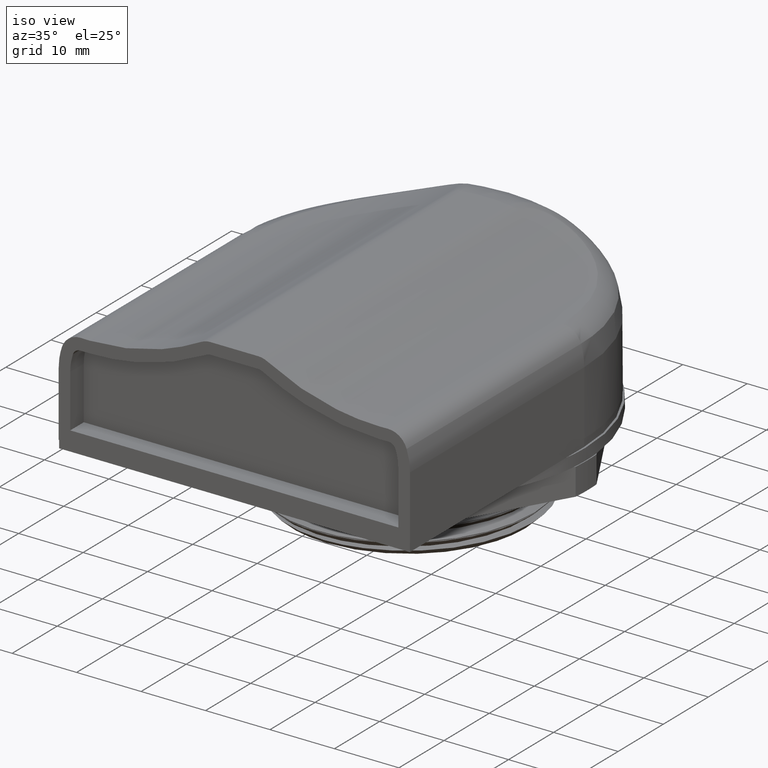
[diagram: clean part render]
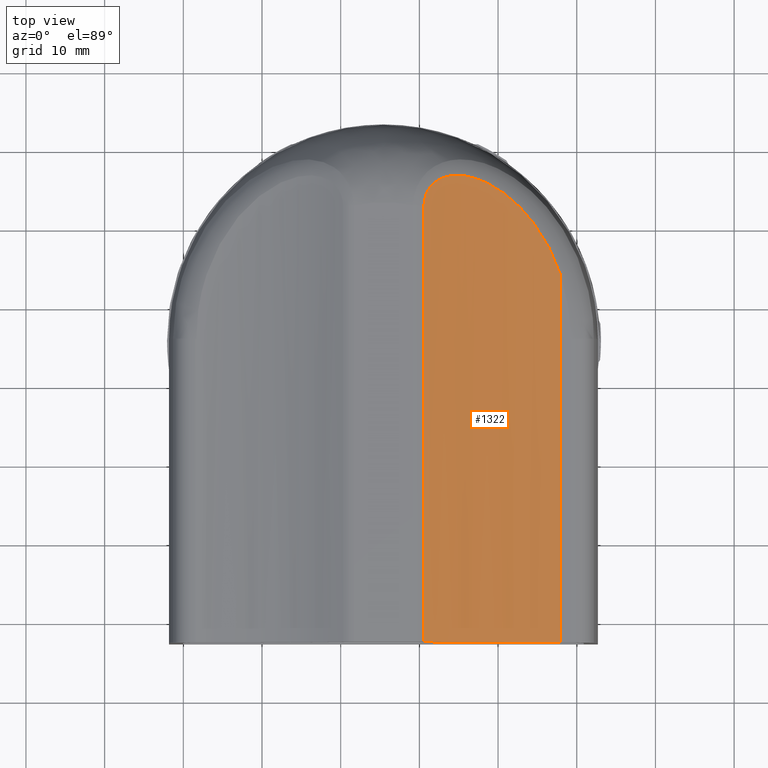
[diagram: tour spotlight — one face highlighted and labeled with its STEP entity id]
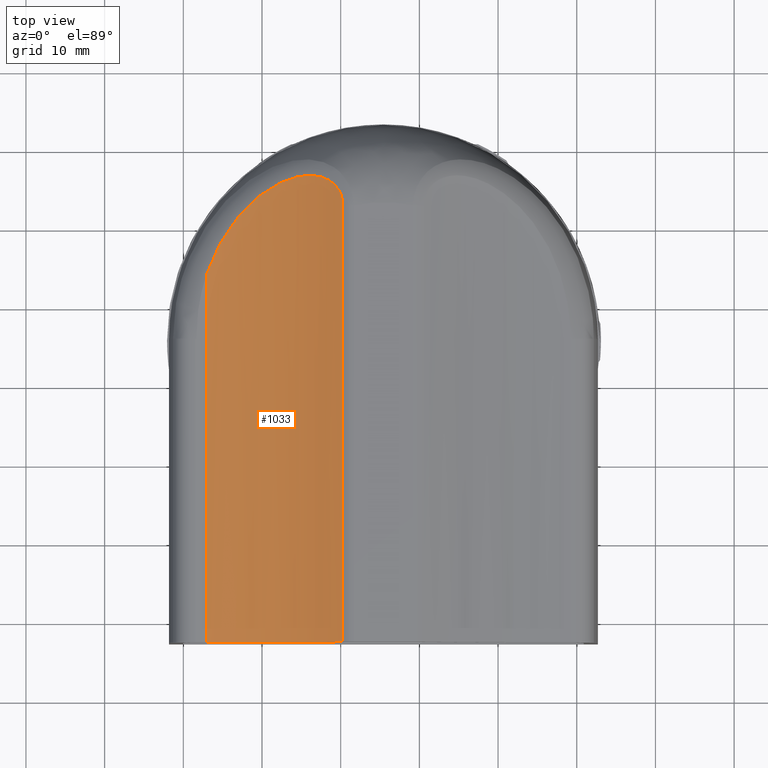
[diagram: tour spotlight — one face highlighted and labeled with its STEP entity id]
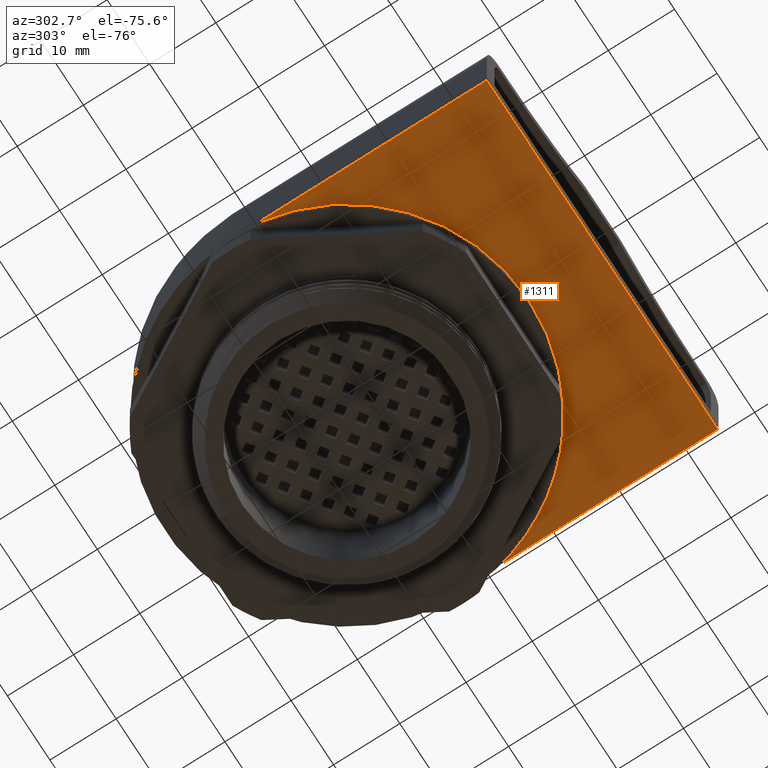
[diagram: tour spotlight — one face highlighted and labeled with its STEP entity id]
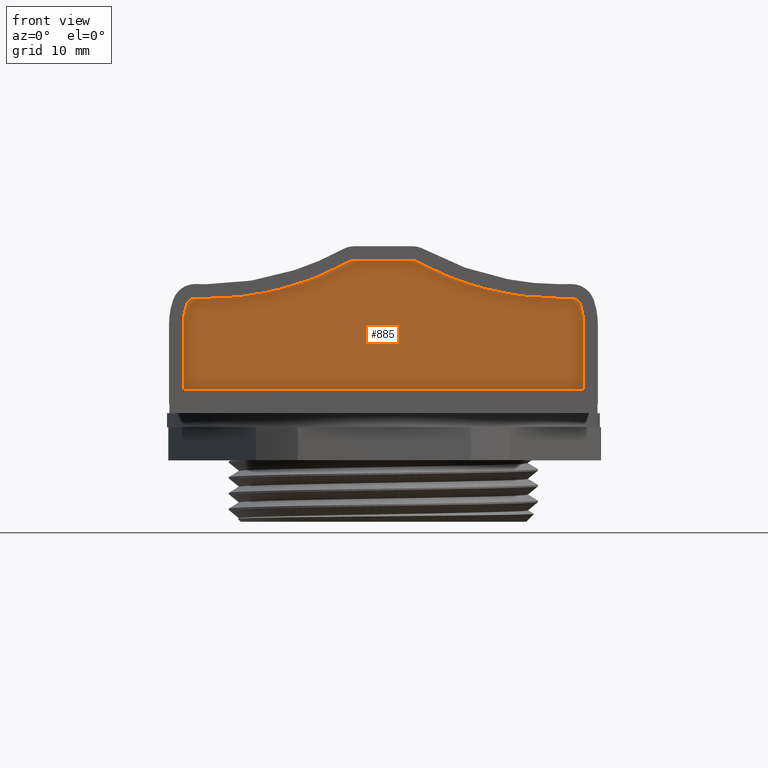
[diagram: tour spotlight — one face highlighted and labeled with its STEP entity id]
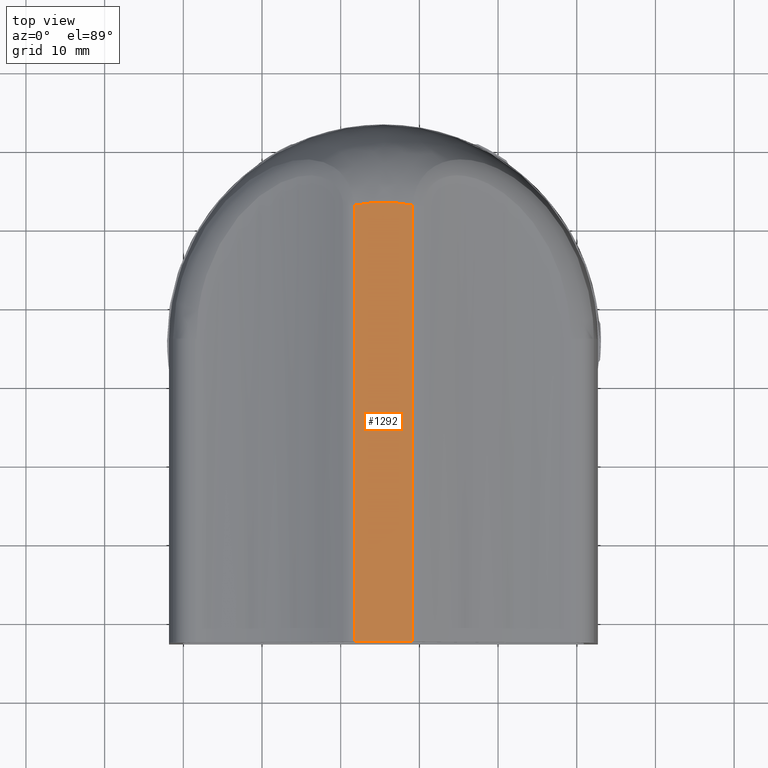
[diagram: tour spotlight — one face highlighted and labeled with its STEP entity id]
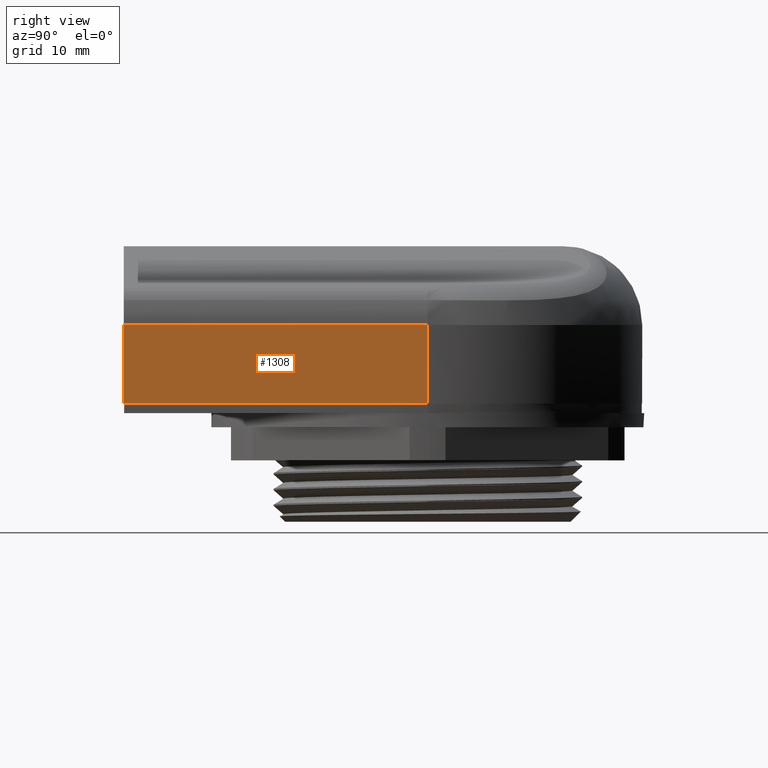
[diagram: tour spotlight — one face highlighted and labeled with its STEP entity id]
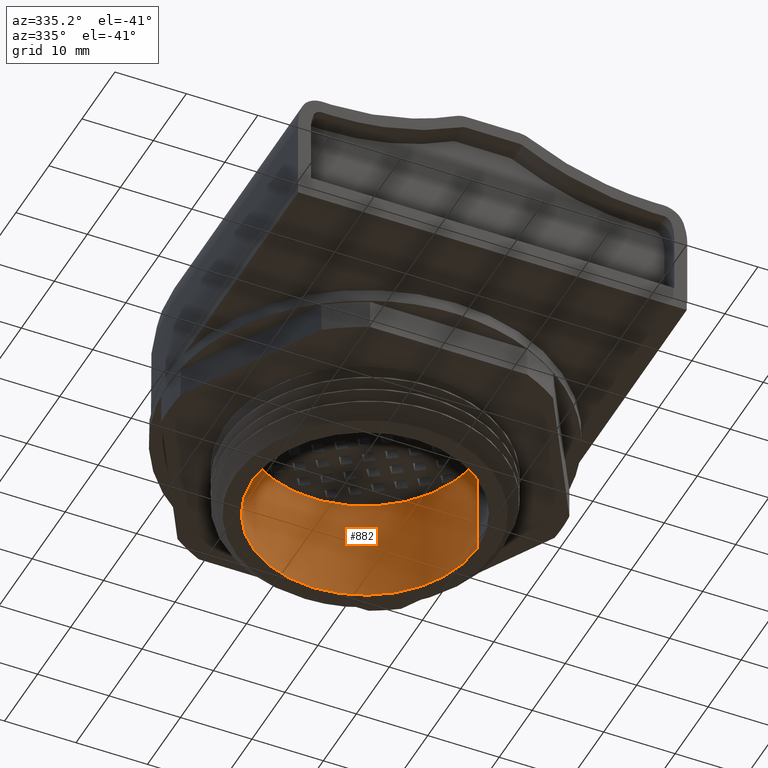
[diagram: tour spotlight — one face highlighted and labeled with its STEP entity id]
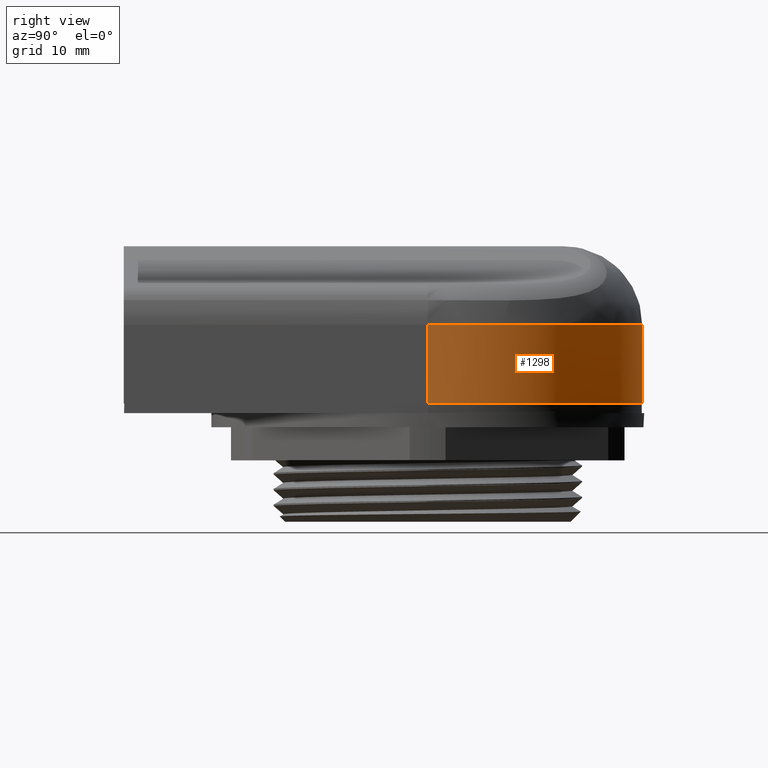
[diagram: tour spotlight — one face highlighted and labeled with its STEP entity id]
A machine part: a face-by-face anatomy tour. The part has 463 B-rep faces; the first image is the clean iso view, then the 8 largest visible faces are spotlighted one at a time (largest first), each with its STEP entity span.

Face 1 — top view, entity #1322. In plain terms, the highlighted cylindrical surface (partial cylindrical patch) has radius 35.9755 mm, axis along (-0, -1, -0).
Definition (entity closure, byte-faithful):
#676 = VERTEX_POINT ( 'NONE', #2936 ) ;
#682 = VERTEX_POINT ( 'NONE', #2967 ) ;
#716 = VERTEX_POINT ( 'NONE', #3008 ) ;
#781 = VERTEX_POINT ( 'NONE', #3056 ) ;
#1322 = ADVANCED_FACE ( 'NONE', ( #6805 ), #6830, .F. ) ;
#1466 = EDGE_CURVE ( 'NONE', #676, #716, #12983, .T. ) ;
#1475 = EDGE_CURVE ( 'NONE', #682, #676, #8190, .T. ) ;
#1484 = EDGE_CURVE ( 'NONE', #682, #781, #13106, .T. ) ;
#1646 = EDGE_CURVE ( 'NONE', #716, #781, #9233, .T. ) ;
#2936 = CARTESIAN_POINT ( 'NONE',  ( 0.5894206708311982000, 22.65582705142066200, 34.62921381726673100 ) ) ;
#2967 = CARTESIAN_POINT ( 'NONE',  ( 0.5894206708311993100, -32.81970099667773200, 34.62921381726673100 ) ) ;
#3008 = CARTESIAN_POINT ( 'NONE',  ( 17.91435504565894400, 13.91955729747340200, 30.18280157222386300 ) ) ;
#3056 = CARTESIAN_POINT ( 'NONE',  ( 17.91435504566777900, -32.81970099667773200, 30.18280391454023000 ) ) ;
#6805 = FACE_OUTER_BOUND ( 'NONE', #13799, .T. ) ;
#6826 = CARTESIAN_POINT ( 'NONE',  ( 17.91435504566778300, 37.18029900332227600, 66.15833463644733600 ) ) ;
#6830 = CYLINDRICAL_SURFACE ( 'NONE', #15738, 35.97553072190710600 ) ;
#6833 = DIRECTION ( 'NONE',  ( 0.0000000000000000000, 0.0000000000000000000, -1.000000000000000000 ) ) ;
#6842 = DIRECTION ( 'NONE',  ( -0.0000000000000000000, -1.000000000000000000, -0.0000000000000000000 ) ) ;
#7994 = CARTESIAN_POINT ( 'NONE',  ( 14.29727215585551800, 20.80341774528595900, 30.35928647592755800 ) ) ;
#7995 = CARTESIAN_POINT ( 'NONE',  ( 2.987627683702854100, 26.18070593661700600, 33.42459163211793100 ) ) ;
#7997 = CARTESIAN_POINT ( 'NONE',  ( 15.54514730244713400, 18.98536606824317000, 30.25976487464847200 ) ) ;
#7999 = CARTESIAN_POINT ( 'NONE',  ( 15.24509115372928900, 19.45094942226220200, 30.28046238829900700 ) ) ;
#8000 = CARTESIAN_POINT ( 'NONE',  ( 6.646956403326323800, 26.28153811823008500, 31.98881194149788600 ) ) ;
#8001 = CARTESIAN_POINT ( 'NONE',  ( 17.13289934507712800, 16.02446224066229900, 30.18781955189463400 ) ) ;
#8003 = CARTESIAN_POINT ( 'NONE',  ( 0.8282380776353874800, 24.05936017812055300, 34.49888450653548200 ) ) ;
#8005 = CARTESIAN_POINT ( 'NONE',  ( 16.38372121233930700, 17.53030612758586300, 30.21451090717873800 ) ) ;
#8006 = CARTESIAN_POINT ( 'NONE',  ( 0.5894206708311982000, 22.65582705142066200, 34.62921381726673100 ) ) ;
#8008 = CARTESIAN_POINT ( 'NONE',  ( 5.159579635805462400, 26.51218975136506400, 32.51561241264001000 ) ) ;
#8009 = CARTESIAN_POINT ( 'NONE',  ( 17.55873645926676800, 14.98767327611740200, 30.18280926038674000 ) ) ;
#8010 = CARTESIAN_POINT ( 'NONE',  ( 17.91435504565894400, 13.91955729747340200, 30.18280157222386300 ) ) ;
#8013 = CARTESIAN_POINT ( 'NONE',  ( 1.060944863465929800, 24.55662015423330800, 34.37439460332020500 ) ) ;
#8014 = CARTESIAN_POINT ( 'NONE',  ( 7.132483865157041700, 26.14363633720814700, 31.83279753729237900 ) ) ;
#8016 = CARTESIAN_POINT ( 'NONE',  ( 16.11435789951367400, 18.02571022939002900, 30.22673648198634700 ) ) ;
#8022 = CARTESIAN_POINT ( 'NONE',  ( 13.60244630183667500, 21.64657766882616100, 30.43382182783956200 ) ) ;
#8024 = CARTESIAN_POINT ( 'NONE',  ( 0.5894207118896369600, 22.94708701944859200, 34.62921379470552800 ) ) ;
#8025 = CARTESIAN_POINT ( 'NONE',  ( 2.111617212408165100, 25.71464509476281500, 33.83866869121131800 ) ) ;
#8026 = CARTESIAN_POINT ( 'NONE',  ( 2.323638611683983800, 25.85364552916909600, 33.73570637844562000 ) ) ;
#8029 = CARTESIAN_POINT ( 'NONE',  ( 1.203673293469726300, 24.78697416884989500, 34.29886196910236900 ) ) ;
#8030 = CARTESIAN_POINT ( 'NONE',  ( 1.715371308402814400, 25.38986259229568200, 34.03543062144147800 ) ) ;
#8031 = CARTESIAN_POINT ( 'NONE',  ( 0.6182158206805737900, 23.23169414458739700, 34.61329562353081000 ) ) ;
#8032 = CARTESIAN_POINT ( 'NONE',  ( 4.180541560476887000, 26.46829094802988200, 32.90642076254410900 ) ) ;
#8033 = CARTESIAN_POINT ( 'NONE',  ( 5.661660782822869100, 26.46640240518590300, 32.32961873902393500 ) ) ;
#8034 = CARTESIAN_POINT ( 'NONE',  ( 10.81334166664248500, 24.21018671010708400, 30.88775867493687600 ) ) ;
#8036 = CARTESIAN_POINT ( 'NONE',  ( 11.23596282773702300, 23.88527484768442800, 30.80564897447938200 ) ) ;
#8037 = CARTESIAN_POINT ( 'NONE',  ( 12.05725628602471000, 23.18841639627939300, 30.66035278329789500 ) ) ;
#8039 = CARTESIAN_POINT ( 'NONE',  ( 9.495084684687341800, 25.08345111134748300, 31.17858105382968500 ) ) ;
#8041 = CARTESIAN_POINT ( 'NONE',  ( 9.942661606546748100, 24.80925124026367400, 31.07431126940961600 ) ) ;
#8042 = CARTESIAN_POINT ( 'NONE',  ( 2.760949212634061600, 26.08602449571019100, 33.52902877728286800 ) ) ;
#8043 = CARTESIAN_POINT ( 'NONE',  ( 8.092518585546987000, 25.79095245749629900, 31.54588233193208400 ) ) ;
#8045 = CARTESIAN_POINT ( 'NONE',  ( 3.456862828172917000, 26.33297040831580600, 33.21466537263700000 ) ) ;
#8049 = CARTESIAN_POINT ( 'NONE',  ( 0.7368266713154991700, 23.78676024710751200, 34.54859939831769800 ) ) ;
#8050 = CARTESIAN_POINT ( 'NONE',  ( 1.532926601088401100, 25.20593089172284700, 34.12831800993684800 ) ) ;
#8051 = CARTESIAN_POINT ( 'NONE',  ( 3.697720630166811100, 26.38979875940441700, 33.10996490468365700 ) ) ;
#8052 = CARTESIAN_POINT ( 'NONE',  ( 4.423911527344603000, 26.49031678532706400, 32.80692820335074300 ) ) ;
#8053 = CARTESIAN_POINT ( 'NONE',  ( 8.569437082731232300, 25.57482871927999200, 31.41443330716661100 ) ) ;
#8054 = CARTESIAN_POINT ( 'NONE',  ( 12.45763061580197700, 22.81458766562397100, 30.59695767891766100 ) ) ;
#8190 = LINE ( 'NONE', #8203, #16104 ) ;
#8200 = CARTESIAN_POINT ( 'NONE',  ( 0.5894206708311993100, -32.81970099667773200, 34.62921381726673100 ) ) ;
#8203 = CARTESIAN_POINT ( 'NONE',  ( 0.5894206708311998700, 37.18029900332227600, 34.62921381726673100 ) ) ;
#8210 = CARTESIAN_POINT ( 'NONE',  ( 3.229729772173227900, -32.81970099667773900, 33.17839055542028600 ) ) ;
#8228 = DIRECTION ( 'NONE',  ( 0.0000000000000000000, 1.000000000000000000, 0.0000000000000000000 ) ) ;
#8258 = CARTESIAN_POINT ( 'NONE',  ( 6.053058665733718900, -32.81970099667773900, 32.06105352492776500 ) ) ;
#8268 = CARTESIAN_POINT ( 'NONE',  ( 14.90169504365222200, -32.81970099667772400, 30.18280391454023000 ) ) ;
#8272 = CARTESIAN_POINT ( 'NONE',  ( 11.88923445306483900, -32.81970099667773200, 30.56321063251643400 ) ) ;
#8273 = CARTESIAN_POINT ( 'NONE',  ( 17.91435504566777900, -32.81970099667773200, 30.18280391454023000 ) ) ;
#9214 = DIRECTION ( 'NONE',  ( -0.0000000000000000000, -1.000000000000000000, -0.0000000000000000000 ) ) ;
#9215 = CARTESIAN_POINT ( 'NONE',  ( 17.91435504566778300, 37.18029900332227600, 30.18280391454023000 ) ) ;
#9233 = LINE ( 'NONE', #9215, #15497 ) ;
#12983 = B_SPLINE_CURVE_WITH_KNOTS ( 'NONE', 3,
 ( #8006, #8024, #8031, #8049, #8003, #8013, #8029, #8050, #8030, #8025, #8026, #8042, #7995, #8045, #8051, #8032, #8052, #8008, #8033, #8000, #8014, #8043, #8053, #8039, #8041, #8034, #8036, #8037, #8054, #8022, #7994, #7999, #7997, #8016, #8005, #8001, #8009, #8010 ),
 .UNSPECIFIED., .F., .F.,
 ( 4, 2, 2, 2, 2, 2, 2, 2, 2, 2, 2, 2, 2, 2, 2, 2, 2, 2, 4 ),
 ( 0.0000000000000000000, 0.03124999999999981300, 0.06249999999999962500, 0.09374999999999944500, 0.1249999999999992500, 0.1562499999999990800, 0.1874999999999989200, 0.2187499999999987800, 0.2499999999999985600, 0.3124999999999985600, 0.3749999999999985600, 0.4374999999999985000, 0.4999999999999985600, 0.5624999999999986700, 0.6249999999999986700, 0.7499999999999991100, 0.8124999999999992200, 0.8749999999999994400, 1.000000000000000000 ),
 .UNSPECIFIED. ) ;
#13106 = B_SPLINE_CURVE_WITH_KNOTS ( 'NONE', 3,
 ( #8200, #8210, #8258, #8272, #8268, #8273 ),
 .UNSPECIFIED., .F., .F.,
 ( 4, 2, 4 ),
 ( 0.0000000000000000000, 0.5000000000000001100, 1.000000000000000000 ),
 .UNSPECIFIED. ) ;
#13799 = EDGE_LOOP ( 'NONE', ( #14154, #14156, #14147, #14178 ) ) ;
#14147 = ORIENTED_EDGE ( 'NONE', *, *, #1475, .F. ) ;
#14154 = ORIENTED_EDGE ( 'NONE', *, *, #1646, .F. ) ;
#14156 = ORIENTED_EDGE ( 'NONE', *, *, #1466, .F. ) ;
#14178 = ORIENTED_EDGE ( 'NONE', *, *, #1484, .T. ) ;
#15497 = VECTOR ( 'NONE', #9214, 1000.000000000000000 ) ;
#15738 = AXIS2_PLACEMENT_3D ( 'NONE', #6826, #6842, #6833 ) ;
#16104 = VECTOR ( 'NONE', #8228, 1000.000000000000000 ) ;

Face 2 — top view, entity #1033. In plain terms, the highlighted cylindrical surface (partial cylindrical patch) has radius 35.9755 mm, axis along (-0, -1, -0).
Definition (entity closure, byte-faithful):
#725 = VERTEX_POINT ( 'NONE', #3012 ) ;
#733 = VERTEX_POINT ( 'NONE', #2987 ) ;
#774 = VERTEX_POINT ( 'NONE', #3093 ) ;
#787 = VERTEX_POINT ( 'NONE', #3043 ) ;
#1033 = ADVANCED_FACE ( 'NONE', ( #5313 ), #5331, .F. ) ;
#1590 = EDGE_CURVE ( 'NONE', #733, #774, #13253, .T. ) ;
#1597 = EDGE_CURVE ( 'NONE', #787, #725, #13222, .T. ) ;
#1625 = EDGE_CURVE ( 'NONE', #725, #774, #9061, .T. ) ;
#1636 = EDGE_CURVE ( 'NONE', #787, #733, #9174, .T. ) ;
#2987 = CARTESIAN_POINT ( 'NONE',  ( -27.05212898633338600, -32.81970099667773200, 30.18280391454023000 ) ) ;
#3012 = CARTESIAN_POINT ( 'NONE',  ( -9.727194611496791800, 22.65582705142065500, 34.62921381726673100 ) ) ;
#3043 = CARTESIAN_POINT ( 'NONE',  ( -27.05212935873010200, 13.91955743176911900, 30.18280376786649900 ) ) ;
#3093 = CARTESIAN_POINT ( 'NONE',  ( -9.727194611496795300, -32.81970099667773200, 34.62921381726673100 ) ) ;
#5311 = CARTESIAN_POINT ( 'NONE',  ( -27.05212898633338300, 37.18029900332227600, 66.15833463644733600 ) ) ;
#5313 = FACE_OUTER_BOUND ( 'NONE', #14923, .T. ) ;
#5318 = DIRECTION ( 'NONE',  ( -0.0000000000000000000, -1.000000000000000000, -0.0000000000000000000 ) ) ;
#5320 = DIRECTION ( 'NONE',  ( 0.0000000000000000000, 0.0000000000000000000, -1.000000000000000000 ) ) ;
#5331 = CYLINDRICAL_SURFACE ( 'NONE', #15675, 35.97553072190710600 ) ;
#8578 = CARTESIAN_POINT ( 'NONE',  ( -21.02700839373045800, -32.81970099667773200, 30.56321063251642300 ) ) ;
#8579 = CARTESIAN_POINT ( 'NONE',  ( -9.727194611496795300, -32.81970099667773200, 34.62921381726673100 ) ) ;
#8597 = CARTESIAN_POINT ( 'NONE',  ( -24.03946898431782500, -32.81970099667773200, 30.18280391454022600 ) ) ;
#8600 = CARTESIAN_POINT ( 'NONE',  ( -12.36750371283883100, -32.81970099667773900, 33.17839055542028600 ) ) ;
#8606 = CARTESIAN_POINT ( 'NONE',  ( -27.05212898633338600, -32.81970099667773200, 30.18280391454023000 ) ) ;
#8617 = CARTESIAN_POINT ( 'NONE',  ( -15.19083260639932200, -32.81970099667771700, 32.06105352492775000 ) ) ;
#8672 = CARTESIAN_POINT ( 'NONE',  ( -27.05212935873010200, 13.91955743176911900, 30.18280376786649900 ) ) ;
#8677 = CARTESIAN_POINT ( 'NONE',  ( -26.69770077408071500, 14.98417233156270900, 30.18280314265857800 ) ) ;
#8689 = CARTESIAN_POINT ( 'NONE',  ( -10.87992366293917500, 25.41499324178615600, 34.02191628299084400 ) ) ;
#8691 = CARTESIAN_POINT ( 'NONE',  ( -21.25743773000773000, 23.13169845618107300, 30.65013604832156300 ) ) ;
#8692 = CARTESIAN_POINT ( 'NONE',  ( -15.87417495162684500, 26.24395975612201000, 31.96318866649395900 ) ) ;
#8693 = CARTESIAN_POINT ( 'NONE',  ( -12.17428875674578500, 26.19926869088883900, 33.40236088971984400 ) ) ;
#8694 = CARTESIAN_POINT ( 'NONE',  ( -10.35953006707626000, 24.81387040777409000, 34.28936722537807200 ) ) ;
#8695 = CARTESIAN_POINT ( 'NONE',  ( -16.60272830392288100, 26.02323556465358900, 31.73298179980488200 ) ) ;
#8696 = CARTESIAN_POINT ( 'NONE',  ( -10.21119171277171300, 24.57897025217898000, 34.36777112921665600 ) ) ;
#8697 = CARTESIAN_POINT ( 'NONE',  ( -9.972138091648611500, 24.07645131281744700, 34.49556220918356100 ) ) ;
#8698 = CARTESIAN_POINT ( 'NONE',  ( -26.27594210370745400, 16.01139765396531100, 30.18765319759852200 ) ) ;
#8699 = CARTESIAN_POINT ( 'NONE',  ( -11.28326233523258200, 25.73883789396788700, 33.82209994824648200 ) ) ;
#8700 = CARTESIAN_POINT ( 'NONE',  ( -9.727192618995678300, 22.95066470473015800, 34.62921491212601700 ) ) ;
#8702 = CARTESIAN_POINT ( 'NONE',  ( -9.880886865475663000, 23.80975828982566600, 34.54516884348534900 ) ) ;
#8704 = CARTESIAN_POINT ( 'NONE',  ( -17.79010067657117500, 25.53464432338386600, 31.39231876647292200 ) ) ;
#8705 = CARTESIAN_POINT ( 'NONE',  ( -9.727194611496791800, 22.65582705142065500, 34.62921381726673100 ) ) ;
#8707 = CARTESIAN_POINT ( 'NONE',  ( -25.29498599748799100, 17.98921226860876400, 30.22233368137427300 ) ) ;
#8708 = CARTESIAN_POINT ( 'NONE',  ( -16.36059428531965700, 26.10466982365795700, 31.80736340048535700 ) ) ;
#8709 = CARTESIAN_POINT ( 'NONE',  ( -11.49613260743709000, 25.87505719562254900, 33.71900642133879700 ) ) ;
#8716 = CARTESIAN_POINT ( 'NONE',  ( -13.37771175928885000, 26.49045070004299200, 32.87861228164328500 ) ) ;
#8718 = CARTESIAN_POINT ( 'NONE',  ( -22.76072291404904700, 21.58675913788844600, 30.43796729246916400 ) ) ;
#8719 = CARTESIAN_POINT ( 'NONE',  ( -22.39975003708137200, 21.99101866236697900, 30.48287711343700600 ) ) ;
#8720 = CARTESIAN_POINT ( 'NONE',  ( -14.88095551486485100, 26.44425945993111100, 32.30316563185928700 ) ) ;
#8722 = CARTESIAN_POINT ( 'NONE',  ( -24.73617547781697500, 18.94053713635998900, 30.25180815715700100 ) ) ;
#8723 = CARTESIAN_POINT ( 'NONE',  ( -23.45371392778878000, 20.74371016620411000, 30.36151405395168700 ) ) ;
#8724 = CARTESIAN_POINT ( 'NONE',  ( -17.32210010359995100, 25.75145573940498900, 31.52000439269393100 ) ) ;
#8725 = CARTESIAN_POINT ( 'NONE',  ( -14.38085768069692500, 26.49281084056010400, 32.48715200362535400 ) ) ;
#8728 = CARTESIAN_POINT ( 'NONE',  ( -19.14772414240004400, 24.76634039538651400, 31.05906899021624700 ) ) ;
#8729 = CARTESIAN_POINT ( 'NONE',  ( -15.12998516517435700, 26.40674179396140200, 32.21470033789923100 ) ) ;
#8732 = CARTESIAN_POINT ( 'NONE',  ( -9.757300283186694400, 23.24282873922015500, 34.61260923947242000 ) ) ;
#8733 = CARTESIAN_POINT ( 'NONE',  ( -15.62637061093721900, 26.30502179707460500, 32.04516778701744800 ) ) ;
#8734 = CARTESIAN_POINT ( 'NONE',  ( -15.50244915597896000, 26.33265720137352500, 32.08692514458733300 ) ) ;
#8735 = CARTESIAN_POINT ( 'NONE',  ( -10.69243702890692700, 25.22977518700620400, 34.11719946735922800 ) ) ;
#8737 = CARTESIAN_POINT ( 'NONE',  ( -21.64802607867094500, 22.76362818756823700, 30.58896595715215800 ) ) ;
#8739 = CARTESIAN_POINT ( 'NONE',  ( -20.44316863747157200, 23.82958827638501400, 30.79267271626466100 ) ) ;
#8740 = CARTESIAN_POINT ( 'NONE',  ( -23.78633349946152700, 20.30397134463022400, 30.32993496458332000 ) ) ;
#8741 = CARTESIAN_POINT ( 'NONE',  ( -15.99595857193498300, 26.21108108310538000, 31.92364953746856700 ) ) ;
#8742 = CARTESIAN_POINT ( 'NONE',  ( -14.12855051243976800, 26.50374236514359400, 32.58318434815565500 ) ) ;
#8743 = CARTESIAN_POINT ( 'NONE',  ( -12.88832207417973700, 26.42171916842149700, 33.08421081807991700 ) ) ;
#8745 = CARTESIAN_POINT ( 'NONE',  ( -20.01842422193591600, 24.15985549840262400, 30.87433262596417200 ) ) ;
#8747 = CARTESIAN_POINT ( 'NONE',  ( -18.70260671063164500, 25.04229921841317000, 31.16194369938475400 ) ) ;
#8748 = CARTESIAN_POINT ( 'NONE',  ( -11.94114816483895700, 26.10517845759569500, 33.50932655459906300 ) ) ;
#9061 = LINE ( 'NONE', #9077, #15467 ) ;
#9076 = DIRECTION ( 'NONE',  ( -0.0000000000000000000, -1.000000000000000000, -0.0000000000000000000 ) ) ;
#9077 = CARTESIAN_POINT ( 'NONE',  ( -9.727194611496795300, 37.18029900332227600, 34.62921381726673100 ) ) ;
#9174 = LINE ( 'NONE', #9192, #15491 ) ;
#9192 = CARTESIAN_POINT ( 'NONE',  ( -27.05212898633338300, 37.18029900332227600, 30.18280391454023000 ) ) ;
#9194 = DIRECTION ( 'NONE',  ( -0.0000000000000000000, -1.000000000000000000, -0.0000000000000000000 ) ) ;
#10534 = ORIENTED_EDGE ( 'NONE', *, *, #1590, .T. ) ;
#10535 = ORIENTED_EDGE ( 'NONE', *, *, #1625, .F. ) ;
#10567 = ORIENTED_EDGE ( 'NONE', *, *, #1597, .F. ) ;
#10622 = ORIENTED_EDGE ( 'NONE', *, *, #1636, .T. ) ;
#13222 = B_SPLINE_CURVE_WITH_KNOTS ( 'NONE', 3,
 ( #8672, #8677, #8698, #8707, #8722, #8740, #8723, #8718, #8719, #8737, #8691, #8739, #8745, #8728, #8747, #8704, #8724, #8695, #8708, #8741, #8692, #8733, #8734, #8729, #8720, #8725, #8742, #8716, #8743, #8693, #8748, #8709, #8699, #8689, #8735, #8694, #8696, #8697, #8702, #8732, #8700, #8705 ),
 .UNSPECIFIED., .F., .F.,
 ( 4, 2, 2, 2, 2, 2, 2, 2, 2, 2, 2, 2, 2, 2, 2, 2, 2, 2, 2, 2, 4 ),
 ( 0.0000000000000000000, 0.1249999999999992500, 0.2499999999999985000, 0.3124999999999981700, 0.3749999999999978400, 0.4374999999999975600, 0.4999999999999972200, 0.5624999999999968900, 0.6249999999999965600, 0.6562499999999966700, 0.6718749999999965600, 0.6874999999999964500, 0.7187499999999966700, 0.7499999999999968900, 0.8124999999999977800, 0.8437499999999981100, 0.8749999999999985600, 0.9062499999999988900, 0.9374999999999992200, 0.9687499999999996700, 1.000000000000000000 ),
 .UNSPECIFIED. ) ;
#13253 = B_SPLINE_CURVE_WITH_KNOTS ( 'NONE', 3,
 ( #8606, #8597, #8578, #8617, #8600, #8579 ),
 .UNSPECIFIED., .F., .F.,
 ( 4, 2, 4 ),
 ( 0.0000000000000000000, 0.4999999999999997800, 1.000000000000000000 ),
 .UNSPECIFIED. ) ;
#14923 = EDGE_LOOP ( 'NONE', ( #10567, #10622, #10534, #10535 ) ) ;
#15467 = VECTOR ( 'NONE', #9076, 1000.000000000000000 ) ;
#15491 = VECTOR ( 'NONE', #9194, 1000.000000000000000 ) ;
#15675 = AXIS2_PLACEMENT_3D ( 'NONE', #5311, #5318, #5320 ) ;

Face 3 — auxiliary view, entity #1311. In plain terms, the highlighted planar face has unit normal (0, 0, -1).
Definition (entity closure, byte-faithful):
#632 = VERTEX_POINT ( 'NONE', #2929 ) ;
#679 = VERTEX_POINT ( 'NONE', #2940 ) ;
#683 = VERTEX_POINT ( 'NONE', #2942 ) ;
#686 = VERTEX_POINT ( 'NONE', #2972 ) ;
#906 = EDGE_CURVE ( 'NONE', #686, #683, #4579, .T. ) ;
#921 = EDGE_CURVE ( 'NONE', #632, #679, #5635, .T. ) ;
#925 = EDGE_CURVE ( 'NONE', #683, #632, #4687, .T. ) ;
#934 = EDGE_CURVE ( 'NONE', #679, #686, #4729, .T. ) ;
#1311 = ADVANCED_FACE ( 'NONE', ( #6759 ), #6721, .T. ) ;
#2929 = CARTESIAN_POINT ( 'NONE',  ( -31.77088697033280000, 1.772825040557955100, 13.79999999999999700 ) ) ;
#2940 = CARTESIAN_POINT ( 'NONE',  ( 22.63311302966720700, 1.772825040557963300, 13.79999999999999700 ) ) ;
#2942 = CARTESIAN_POINT ( 'NONE',  ( -31.77088697033280700, -32.77170099667773700, 13.79999999999999700 ) ) ;
#2972 = CARTESIAN_POINT ( 'NONE',  ( 22.63311302966721100, -32.77170099667774400, 13.79999999999999700 ) ) ;
#4579 = LINE ( 'NONE', #4582, #5573 ) ;
#4582 = CARTESIAN_POINT ( 'NONE',  ( -4.568886970332791000, -32.77170099667773700, 13.79999999999999700 ) ) ;
#4584 = DIRECTION ( 'NONE',  ( -1.000000000000000000, 0.0000000000000000000, -0.0000000000000000000 ) ) ;
#4674 = CARTESIAN_POINT ( 'NONE',  ( -31.77088697033280700, 9.930299003322279100, 13.79999999999999700 ) ) ;
#4679 = DIRECTION ( 'NONE',  ( -0.0000000000000000000, -0.0000000000000000000, 1.000000000000000000 ) ) ;
#4685 = DIRECTION ( 'NONE',  ( -1.000000000000000000, 0.0000000000000000000, 0.0000000000000000000 ) ) ;
#4687 = LINE ( 'NONE', #4674, #5618 ) ;
#4688 = DIRECTION ( 'NONE',  ( 0.0000000000000000000, 1.000000000000000000, 0.0000000000000000000 ) ) ;
#4703 = CARTESIAN_POINT ( 'NONE',  ( -4.568886970332794600, 5.810299003322278100, 13.79999999999999700 ) ) ;
#4729 = LINE ( 'NONE', #4743, #5642 ) ;
#4743 = CARTESIAN_POINT ( 'NONE',  ( 22.63311302966720700, 9.930299003322279100, 13.79999999999999700 ) ) ;
#4757 = DIRECTION ( 'NONE',  ( -0.0000000000000000000, -1.000000000000000000, -0.0000000000000000000 ) ) ;
#5573 = VECTOR ( 'NONE', #4584, 1000.000000000000000 ) ;
#5616 = AXIS2_PLACEMENT_3D ( 'NONE', #4703, #4679, #4685 ) ;
#5618 = VECTOR ( 'NONE', #4688, 1000.000000000000000 ) ;
#5635 = CIRCLE ( 'NONE', #5616, 27.49999999999999600 ) ;
#5642 = VECTOR ( 'NONE', #4757, 1000.000000000000000 ) ;
#6720 = CARTESIAN_POINT ( 'NONE',  ( -4.568886970332791000, 9.930299003322279100, 13.79999999999999700 ) ) ;
#6721 = PLANE ( 'NONE',  #15919 ) ;
#6728 = DIRECTION ( 'NONE',  ( -1.000000000000000000, 0.0000000000000000000, -0.0000000000000000000 ) ) ;
#6746 = DIRECTION ( 'NONE',  ( 0.0000000000000000000, 0.0000000000000000000, -1.000000000000000000 ) ) ;
#6759 = FACE_OUTER_BOUND ( 'NONE', #13775, .T. ) ;
#13775 = EDGE_LOOP ( 'NONE', ( #14432, #14465, #14499, #14411 ) ) ;
#14411 = ORIENTED_EDGE ( 'NONE', *, *, #906, .T. ) ;
#14432 = ORIENTED_EDGE ( 'NONE', *, *, #925, .T. ) ;
#14465 = ORIENTED_EDGE ( 'NONE', *, *, #921, .T. ) ;
#14499 = ORIENTED_EDGE ( 'NONE', *, *, #934, .T. ) ;
#15919 = AXIS2_PLACEMENT_3D ( 'NONE', #6720, #6746, #6728 ) ;

Face 4 — front view, entity #885. In plain terms, the highlighted planar face has unit normal (0, -1, 0).
Definition (entity closure, byte-faithful):
#545 = VERTEX_POINT ( 'NONE', #2794 ) ;
#551 = VERTEX_POINT ( 'NONE', #2821 ) ;
#592 = VERTEX_POINT ( 'NONE', #2898 ) ;
#597 = VERTEX_POINT ( 'NONE', #2907 ) ;
#635 = VERTEX_POINT ( 'NONE', #2950 ) ;
#650 = VERTEX_POINT ( 'NONE', #2964 ) ;
#657 = VERTEX_POINT ( 'NONE', #2932 ) ;
#668 = VERTEX_POINT ( 'NONE', #2956 ) ;
#704 = VERTEX_POINT ( 'NONE', #2980 ) ;
#711 = VERTEX_POINT ( 'NONE', #2982 ) ;
#724 = VERTEX_POINT ( 'NONE', #3020 ) ;
#735 = VERTEX_POINT ( 'NONE', #3018 ) ;
#749 = VERTEX_POINT ( 'NONE', #3005 ) ;
#753 = VERTEX_POINT ( 'NONE', #2973 ) ;
#885 = ADVANCED_FACE ( 'NONE', ( #3230 ), #3235, .T. ) ;
#1358 = EDGE_CURVE ( 'NONE', #724, #635, #7017, .T. ) ;
#1364 = EDGE_CURVE ( 'NONE', #753, #551, #16029, .T. ) ;
#1369 = EDGE_CURVE ( 'NONE', #668, #650, #7012, .T. ) ;
#1372 = EDGE_CURVE ( 'NONE', #545, #735, #16013, .T. ) ;
#1383 = EDGE_CURVE ( 'NONE', #657, #597, #16019, .T. ) ;
#1388 = EDGE_CURVE ( 'NONE', #635, #592, #7119, .T. ) ;
#1390 = EDGE_CURVE ( 'NONE', #592, #597, #16060, .T. ) ;
#1407 = EDGE_CURVE ( 'NONE', #704, #545, #16065, .T. ) ;
#1408 = EDGE_CURVE ( 'NONE', #551, #668, #16084, .T. ) ;
#1409 = EDGE_CURVE ( 'NONE', #704, #724, #7217, .T. ) ;
#1410 = EDGE_CURVE ( 'NONE', #650, #711, #16031, .T. ) ;
#1419 = EDGE_CURVE ( 'NONE', #749, #657, #16066, .T. ) ;
#1601 = EDGE_CURVE ( 'NONE', #735, #753, #15440, .T. ) ;
#1604 = EDGE_CURVE ( 'NONE', #711, #749, #15416, .T. ) ;
#2794 = CARTESIAN_POINT ( 'NONE',  ( -29.60015785310536500, -29.81970099667773900, 27.58685590029981300 ) ) ;
#2821 = CARTESIAN_POINT ( 'NONE',  ( -8.860358702507252100, -29.81970099667773900, 33.05168552690668800 ) ) ;
#2898 = CARTESIAN_POINT ( 'NONE',  ( 20.88111302966720800, -29.81970099667773900, 25.00000000000000000 ) ) ;
#2907 = CARTESIAN_POINT ( 'NONE',  ( 20.46238391243976900, -29.81970099667773900, 27.58685590029981300 ) ) ;
#2932 = CARTESIAN_POINT ( 'NONE',  ( 19.28027084955339300, -29.81970099667773900, 28.40750689269523500 ) ) ;
#2950 = CARTESIAN_POINT ( 'NONE',  ( 20.88111302966720800, -29.81970099667773900, 16.80000000000000100 ) ) ;
#2956 = CARTESIAN_POINT ( 'NONE',  ( -8.282468096514207900, -29.81970099667773900, 33.20000000000000300 ) ) ;
#2964 = CARTESIAN_POINT ( 'NONE',  ( -0.8553058441513882200, -29.81970099667773900, 33.20000000000001000 ) ) ;
#2973 = CARTESIAN_POINT ( 'NONE',  ( -27.05212898633338300, -29.81970099667773900, 28.38280391454022600 ) ) ;
#2980 = CARTESIAN_POINT ( 'NONE',  ( -30.01888697033280500, -29.81970099667773200, 25.00000000000000000 ) ) ;
#2982 = CARTESIAN_POINT ( 'NONE',  ( -0.2774152381583849800, -29.81970099667773900, 33.05168552690670200 ) ) ;
#3005 = CARTESIAN_POINT ( 'NONE',  ( 17.91435504566778300, -29.81970099667773900, 28.38280391454021900 ) ) ;
#3018 = CARTESIAN_POINT ( 'NONE',  ( -28.41804479021898500, -29.81970099667773900, 28.40750689269523100 ) ) ;
#3020 = CARTESIAN_POINT ( 'NONE',  ( -30.01888697033280500, -29.81970099667773900, 16.80000000000000100 ) ) ;
#3213 = DIRECTION ( 'NONE',  ( 0.0000000000000000000, -0.0000000000000000000, -1.000000000000000000 ) ) ;
#3230 = FACE_OUTER_BOUND ( 'NONE', #13874, .T. ) ;
#3235 = PLANE ( 'NONE',  #5179 ) ;
#3238 = CARTESIAN_POINT ( 'NONE',  ( -30.01888697033280500, -29.81970099667773900, 16.80000000000000100 ) ) ;
#3255 = DIRECTION ( 'NONE',  ( 0.0000000000000000000, -1.000000000000000000, 0.0000000000000000000 ) ) ;
#5179 = AXIS2_PLACEMENT_3D ( 'NONE', #3238, #3255, #3213 ) ;
#6981 = DIRECTION ( 'NONE',  ( 1.000000000000000000, -0.0000000000000000000, 0.0000000000000000000 ) ) ;
#6984 = DIRECTION ( 'NONE',  ( 0.0000000000000000000, -1.000000000000000000, 0.0000000000000000000 ) ) ;
#7012 = LINE ( 'NONE', #7039, #16015 ) ;
#7013 = CARTESIAN_POINT ( 'NONE',  ( -27.05212898633338300, -29.81970099667773900, 66.15833463644733600 ) ) ;
#7017 = LINE ( 'NONE', #7024, #15990 ) ;
#7024 = CARTESIAN_POINT ( 'NONE',  ( -30.01888697033280500, -29.81970099667773900, 16.80000000000000100 ) ) ;
#7026 = DIRECTION ( 'NONE',  ( 0.0000000000000000000, 0.0000000000000000000, -1.000000000000000000 ) ) ;
#7036 = CARTESIAN_POINT ( 'NONE',  ( -28.46143528489474800, -29.81970099667773900, 27.20829162220716000 ) ) ;
#7039 = CARTESIAN_POINT ( 'NONE',  ( -30.01888697033281900, -29.81970099667773900, 33.19999999999998200 ) ) ;
#7055 = DIRECTION ( 'NONE',  ( -0.0000000000000000000, 1.000000000000000000, -0.0000000000000000000 ) ) ;
#7064 = DIRECTION ( 'NONE',  ( 1.000000000000000000, -0.0000000000000000000, 9.342590976385015800E-016 ) ) ;
#7069 = DIRECTION ( 'NONE',  ( 2.891205793294687700E-015, 0.0000000000000000000, -1.000000000000000000 ) ) ;
#7078 = DIRECTION ( 'NONE',  ( 0.0000000000000000000, 0.0000000000000000000, -1.000000000000000000 ) ) ;
#7085 = CARTESIAN_POINT ( 'NONE',  ( 12.68111302966720700, -29.81970099667773900, 25.00000000000000000 ) ) ;
#7090 = CARTESIAN_POINT ( 'NONE',  ( 19.32366134422915100, -29.81970099667773900, 27.20829162220716000 ) ) ;
#7099 = DIRECTION ( 'NONE',  ( 0.0000000000000000000, -1.000000000000000000, 0.0000000000000000000 ) ) ;
#7106 = DIRECTION ( 'NONE',  ( -0.0000000000000000000, -0.0000000000000000000, 1.000000000000000000 ) ) ;
#7110 = DIRECTION ( 'NONE',  ( 0.0000000000000000000, 0.0000000000000000000, -1.000000000000000000 ) ) ;
#7112 = DIRECTION ( 'NONE',  ( -0.0000000000000000000, 1.000000000000000000, -0.0000000000000000000 ) ) ;
#7116 = CARTESIAN_POINT ( 'NONE',  ( 20.88111302966720800, -29.81970099667773900, 16.80000000000000100 ) ) ;
#7119 = LINE ( 'NONE', #7116, #15982 ) ;
#7202 = CARTESIAN_POINT ( 'NONE',  ( -30.01888697033280500, -29.81970099667773900, 25.00000000000000000 ) ) ;
#7217 = LINE ( 'NONE', #7202, #16039 ) ;
#7240 = DIRECTION ( 'NONE',  ( -0.0000000000000000000, 1.000000000000000000, -0.0000000000000000000 ) ) ;
#7245 = CARTESIAN_POINT ( 'NONE',  ( -21.81888697033280200, -29.81970099667773900, 25.00000000000000000 ) ) ;
#7249 = DIRECTION ( 'NONE',  ( 0.0000000000000000000, 0.0000000000000000000, -1.000000000000000000 ) ) ;
#7253 = DIRECTION ( 'NONE',  ( -0.0000000000000000000, -0.0000000000000000000, -1.000000000000000000 ) ) ;
#7258 = DIRECTION ( 'NONE',  ( 0.0000000000000000000, 0.0000000000000000000, -1.000000000000000000 ) ) ;
#7261 = DIRECTION ( 'NONE',  ( -0.0000000000000000000, 1.000000000000000000, -0.0000000000000000000 ) ) ;
#7263 = CARTESIAN_POINT ( 'NONE',  ( -0.8553058441513883300, -29.81970099667773900, 32.00000000000000000 ) ) ;
#7268 = DIRECTION ( 'NONE',  ( -0.0000000000000000000, 1.000000000000000000, -0.0000000000000000000 ) ) ;
#7275 = DIRECTION ( 'NONE',  ( 0.0000000000000000000, 0.0000000000000000000, -1.000000000000000000 ) ) ;
#7279 = CARTESIAN_POINT ( 'NONE',  ( -8.282468096514207900, -29.81970099667773900, 32.00000000000000000 ) ) ;
#7446 = CARTESIAN_POINT ( 'NONE',  ( 17.91435504566778300, -29.81970099667773900, 66.15833463644733600 ) ) ;
#7487 = DIRECTION ( 'NONE',  ( 0.0000000000000000000, -1.000000000000000000, 0.0000000000000000000 ) ) ;
#7516 = DIRECTION ( 'NONE',  ( 0.0000000000000000000, 0.0000000000000000000, -1.000000000000000000 ) ) ;
#8751 = CARTESIAN_POINT ( 'NONE',  ( -27.05212898633338300, -29.81970099667773900, 66.15833463644733600 ) ) ;
#8776 = DIRECTION ( 'NONE',  ( 0.0000000000000000000, 0.0000000000000000000, -1.000000000000000000 ) ) ;
#8808 = DIRECTION ( 'NONE',  ( 0.0000000000000000000, -1.000000000000000000, 0.0000000000000000000 ) ) ;
#8813 = DIRECTION ( 'NONE',  ( 0.0000000000000000000, -1.000000000000000000, 0.0000000000000000000 ) ) ;
#8854 = CARTESIAN_POINT ( 'NONE',  ( 17.91435504566778300, -29.81970099667773900, 66.15833463644733600 ) ) ;
#8855 = DIRECTION ( 'NONE',  ( 0.0000000000000000000, 0.0000000000000000000, -1.000000000000000000 ) ) ;
#13874 = EDGE_LOOP ( 'NONE', ( #14074, #14124, #14098, #14107, #14041, #14029, #14045, #14104, #14082, #14067, #14128, #14095, #14006, #14007 ) ) ;
#14006 = ORIENTED_EDGE ( 'NONE', *, *, #1409, .T. ) ;
#14007 = ORIENTED_EDGE ( 'NONE', *, *, #1358, .T. ) ;
#14029 = ORIENTED_EDGE ( 'NONE', *, *, #1410, .F. ) ;
#14041 = ORIENTED_EDGE ( 'NONE', *, *, #1604, .F. ) ;
#14045 = ORIENTED_EDGE ( 'NONE', *, *, #1369, .F. ) ;
#14067 = ORIENTED_EDGE ( 'NONE', *, *, #1601, .F. ) ;
#14074 = ORIENTED_EDGE ( 'NONE', *, *, #1388, .T. ) ;
#14082 = ORIENTED_EDGE ( 'NONE', *, *, #1364, .F. ) ;
#14095 = ORIENTED_EDGE ( 'NONE', *, *, #1407, .F. ) ;
#14098 = ORIENTED_EDGE ( 'NONE', *, *, #1383, .F. ) ;
#14104 = ORIENTED_EDGE ( 'NONE', *, *, #1408, .F. ) ;
#14107 = ORIENTED_EDGE ( 'NONE', *, *, #1419, .F. ) ;
#14124 = ORIENTED_EDGE ( 'NONE', *, *, #1390, .T. ) ;
#14128 = ORIENTED_EDGE ( 'NONE', *, *, #1372, .F. ) ;
#15416 = CIRCLE ( 'NONE', #15420, 37.77553072190711700 ) ;
#15420 = AXIS2_PLACEMENT_3D ( 'NONE', #8854, #8813, #8855 ) ;
#15440 = CIRCLE ( 'NONE', #15446, 37.77553072190711000 ) ;
#15446 = AXIS2_PLACEMENT_3D ( 'NONE', #8751, #8808, #8776 ) ;
#15973 = AXIS2_PLACEMENT_3D ( 'NONE', #7036, #7055, #7069 ) ;
#15982 = VECTOR ( 'NONE', #7106, 1000.000000000000000 ) ;
#15990 = VECTOR ( 'NONE', #6981, 1000.000000000000000 ) ;
#15992 = AXIS2_PLACEMENT_3D ( 'NONE', #7013, #6984, #7026 ) ;
#15994 = AXIS2_PLACEMENT_3D ( 'NONE', #7090, #7112, #7078 ) ;
#16013 = CIRCLE ( 'NONE', #15973, 1.199999999999996200 ) ;
#16015 = VECTOR ( 'NONE', #7064, 1000.000000000000000 ) ;
#16019 = CIRCLE ( 'NONE', #15994, 1.199999999999999700 ) ;
#16029 = CIRCLE ( 'NONE', #15992, 37.77553072190711000 ) ;
#16031 = CIRCLE ( 'NONE', #16035, 1.200000000000003100 ) ;
#16034 = AXIS2_PLACEMENT_3D ( 'NONE', #7085, #7099, #7110 ) ;
#16035 = AXIS2_PLACEMENT_3D ( 'NONE', #7263, #7268, #7275 ) ;
#16038 = AXIS2_PLACEMENT_3D ( 'NONE', #7245, #7240, #7258 ) ;
#16039 = VECTOR ( 'NONE', #7253, 1000.000000000000000 ) ;
#16060 = CIRCLE ( 'NONE', #16034, 8.200000000000002800 ) ;
#16065 = CIRCLE ( 'NONE', #16038, 8.200000000000002800 ) ;
#16066 = CIRCLE ( 'NONE', #16067, 37.77553072190711700 ) ;
#16067 = AXIS2_PLACEMENT_3D ( 'NONE', #7446, #7487, #7516 ) ;
#16078 = AXIS2_PLACEMENT_3D ( 'NONE', #7279, #7261, #7249 ) ;
#16084 = CIRCLE ( 'NONE', #16078, 1.200000000000003100 ) ;

Face 5 — top view, entity #1292. In plain terms, the highlighted planar face has unit normal (0, 0, 1).
Definition (entity closure, byte-faithful):
#613 = VERTEX_POINT ( 'NONE', #2891 ) ;
#685 = VERTEX_POINT ( 'NONE', #2968 ) ;
#691 = VERTEX_POINT ( 'NONE', #3015 ) ;
#701 = VERTEX_POINT ( 'NONE', #3028 ) ;
#900 = EDGE_CURVE ( 'NONE', #701, #685, #4544, .T. ) ;
#901 = EDGE_CURVE ( 'NONE', #691, #701, #4510, .T. ) ;
#1292 = ADVANCED_FACE ( 'NONE', ( #6610 ), #6607, .T. ) ;
#1447 = EDGE_CURVE ( 'NONE', #685, #613, #7754, .T. ) ;
#1485 = EDGE_CURVE ( 'NONE', #691, #613, #3815, .T. ) ;
#2891 = CARTESIAN_POINT ( 'NONE',  ( -0.8553058441513895500, 22.65582705142066200, 35.00000000000000000 ) ) ;
#2968 = CARTESIAN_POINT ( 'NONE',  ( -0.8553058441513882200, -32.81970099667773200, 35.00000000000000000 ) ) ;
#3015 = CARTESIAN_POINT ( 'NONE',  ( -8.282468096514207900, 22.65582705142065800, 35.00000000000000000 ) ) ;
#3028 = CARTESIAN_POINT ( 'NONE',  ( -8.282468096514207900, -32.81970099667773200, 35.00000000000000000 ) ) ;
#3815 =( BOUNDED_CURVE ( )  B_SPLINE_CURVE ( 3, ( #8247, #8265, #8244, #8230 ),
 .UNSPECIFIED., .F., .T. ) 
 B_SPLINE_CURVE_WITH_KNOTS ( ( 4, 4 ),
 ( 0.0000000000000000000, 1.000000000000000000 ),
 .UNSPECIFIED. ) 
 CURVE ( )  GEOMETRIC_REPRESENTATION_ITEM ( )  RATIONAL_B_SPLINE_CURVE ( ( 1.000000000000000000, 0.9843682337429324700, 0.9843682337429324700, 1.000000000000000000 ) ) 
 REPRESENTATION_ITEM ( '' )  );
#4510 = LINE ( 'NONE', #4556, #5400 ) ;
#4520 = DIRECTION ( 'NONE',  ( 1.000000000000000000, 0.0000000000000000000, -0.0000000000000000000 ) ) ;
#4524 = DIRECTION ( 'NONE',  ( 0.0000000000000000000, -1.000000000000000000, -0.0000000000000000000 ) ) ;
#4544 = LINE ( 'NONE', #4558, #5407 ) ;
#4556 = CARTESIAN_POINT ( 'NONE',  ( -8.282468096514207900, 9.930299003322279100, 35.00000000000000000 ) ) ;
#4558 = CARTESIAN_POINT ( 'NONE',  ( 22.68111302966720900, -32.81970099667773200, 35.00000000000000000 ) ) ;
#5400 = VECTOR ( 'NONE', #4524, 1000.000000000000000 ) ;
#5407 = VECTOR ( 'NONE', #4520, 1000.000000000000000 ) ;
#6607 = PLANE ( 'NONE',  #15959 ) ;
#6610 = FACE_OUTER_BOUND ( 'NONE', #13852, .T. ) ;
#6611 = CARTESIAN_POINT ( 'NONE',  ( -4.568886970332791000, 9.930299003322279100, 35.00000000000000000 ) ) ;
#6612 = DIRECTION ( 'NONE',  ( 0.0000000000000000000, 0.0000000000000000000, 1.000000000000000000 ) ) ;
#6630 = DIRECTION ( 'NONE',  ( 1.000000000000000000, 0.0000000000000000000, -0.0000000000000000000 ) ) ;
#7722 = CARTESIAN_POINT ( 'NONE',  ( -0.8553058441513883300, 9.930299003322279100, 35.00000000000000000 ) ) ;
#7724 = DIRECTION ( 'NONE',  ( -0.0000000000000000000, 1.000000000000000000, 0.0000000000000000000 ) ) ;
#7754 = LINE ( 'NONE', #7722, #16046 ) ;
#8230 = CARTESIAN_POINT ( 'NONE',  ( -0.8553058441513895500, 22.65582705142066200, 35.00000000000000000 ) ) ;
#8244 = CARTESIAN_POINT ( 'NONE',  ( -3.311369373805939500, 23.19726399197754000, 34.99999999999999300 ) ) ;
#8247 = CARTESIAN_POINT ( 'NONE',  ( -8.282468096514207900, 22.65582705142065800, 35.00000000000000000 ) ) ;
#8265 = CARTESIAN_POINT ( 'NONE',  ( -5.826404566859658900, 23.19726399197754000, 34.99999999999999300 ) ) ;
#13852 = EDGE_LOOP ( 'NONE', ( #14135, #14137, #14140, #14142 ) ) ;
#14135 = ORIENTED_EDGE ( 'NONE', *, *, #1447, .T. ) ;
#14137 = ORIENTED_EDGE ( 'NONE', *, *, #1485, .F. ) ;
#14140 = ORIENTED_EDGE ( 'NONE', *, *, #901, .T. ) ;
#14142 = ORIENTED_EDGE ( 'NONE', *, *, #900, .T. ) ;
#15959 = AXIS2_PLACEMENT_3D ( 'NONE', #6611, #6612, #6630 ) ;
#16046 = VECTOR ( 'NONE', #7724, 1000.000000000000000 ) ;

Face 6 — right view, entity #1308. In plain terms, the highlighted planar face has unit normal (-1, -0, 0).
Definition (entity closure, byte-faithful):
#692 = VERTEX_POINT ( 'NONE', #2981 ) ;
#722 = VERTEX_POINT ( 'NONE', #3011 ) ;
#723 = VERTEX_POINT ( 'NONE', #3001 ) ;
#729 = VERTEX_POINT ( 'NONE', #2977 ) ;
#904 = EDGE_CURVE ( 'NONE', #692, #729, #4535, .T. ) ;
#1308 = ADVANCED_FACE ( 'NONE', ( #6750 ), #6719, .F. ) ;
#1452 = EDGE_CURVE ( 'NONE', #723, #722, #7846, .T. ) ;
#1459 = EDGE_CURVE ( 'NONE', #729, #723, #7843, .T. ) ;
#1471 = EDGE_CURVE ( 'NONE', #722, #692, #8217, .T. ) ;
#2977 = CARTESIAN_POINT ( 'NONE',  ( 22.68111302966720500, 5.810299003322279900, 25.00000000000000000 ) ) ;
#2981 = CARTESIAN_POINT ( 'NONE',  ( 22.68111302966720900, -32.81970099667773200, 25.00000000000000000 ) ) ;
#3001 = CARTESIAN_POINT ( 'NONE',  ( 22.68111302966720500, 5.810299003322280800, 15.00000000000000000 ) ) ;
#3011 = CARTESIAN_POINT ( 'NONE',  ( 22.68111302966720500, -32.81970099667773200, 15.00000000000000000 ) ) ;
#4535 = LINE ( 'NONE', #4550, #5544 ) ;
#4538 = DIRECTION ( 'NONE',  ( -8.115665384686814500E-017, 1.000000000000000000, -0.0000000000000000000 ) ) ;
#4550 = CARTESIAN_POINT ( 'NONE',  ( 22.68111302966720500, 9.930299003322280900, 25.00000000000000000 ) ) ;
#5544 = VECTOR ( 'NONE', #4538, 1000.000000000000000 ) ;
#6719 = PLANE ( 'NONE',  #15920 ) ;
#6743 = DIRECTION ( 'NONE',  ( 8.115665384686814500E-017, -1.000000000000000000, 0.0000000000000000000 ) ) ;
#6744 = CARTESIAN_POINT ( 'NONE',  ( 22.68111302966720500, 9.930299003322280900, 35.00000000000000000 ) ) ;
#6750 = FACE_OUTER_BOUND ( 'NONE', #13807, .T. ) ;
#6756 = DIRECTION ( 'NONE',  ( -1.000000000000000000, -8.115665384686814500E-017, 0.0000000000000000000 ) ) ;
#7824 = CARTESIAN_POINT ( 'NONE',  ( 22.68111302966720500, 9.930299003322279100, 15.00000000000000000 ) ) ;
#7840 = CARTESIAN_POINT ( 'NONE',  ( 22.68111302966720500, 5.810299003322279900, 35.00000000000000000 ) ) ;
#7843 = LINE ( 'NONE', #7840, #16091 ) ;
#7846 = LINE ( 'NONE', #7824, #16043 ) ;
#7853 = DIRECTION ( 'NONE',  ( -0.0000000000000000000, -0.0000000000000000000, -1.000000000000000000 ) ) ;
#7864 = DIRECTION ( 'NONE',  ( -0.0000000000000000000, -1.000000000000000000, -0.0000000000000000000 ) ) ;
#8204 = DIRECTION ( 'NONE',  ( 0.0000000000000000000, 0.0000000000000000000, 1.000000000000000000 ) ) ;
#8212 = CARTESIAN_POINT ( 'NONE',  ( 22.68111302966720900, -32.81970099667773200, 35.00000000000000000 ) ) ;
#8217 = LINE ( 'NONE', #8212, #16107 ) ;
#13807 = EDGE_LOOP ( 'NONE', ( #13939, #13903, #13891, #13883 ) ) ;
#13883 = ORIENTED_EDGE ( 'NONE', *, *, #904, .F. ) ;
#13891 = ORIENTED_EDGE ( 'NONE', *, *, #1459, .F. ) ;
#13903 = ORIENTED_EDGE ( 'NONE', *, *, #1452, .F. ) ;
#13939 = ORIENTED_EDGE ( 'NONE', *, *, #1471, .F. ) ;
#15920 = AXIS2_PLACEMENT_3D ( 'NONE', #6744, #6756, #6743 ) ;
#16043 = VECTOR ( 'NONE', #7864, 1000.000000000000000 ) ;
#16091 = VECTOR ( 'NONE', #7853, 1000.000000000000000 ) ;
#16107 = VECTOR ( 'NONE', #8204, 1000.000000000000000 ) ;

Face 7 — auxiliary view, entity #882. In plain terms, the highlighted cylindrical surface (partial cylindrical patch) has radius 15.75 mm, axis along (-0, -0, -1).
Definition (entity closure, byte-faithful):
#630 = VERTEX_POINT ( 'NONE', #2916 ) ;
#637 = VERTEX_POINT ( 'NONE', #2911 ) ;
#642 = VERTEX_POINT ( 'NONE', #2918 ) ;
#666 = VERTEX_POINT ( 'NONE', #2949 ) ;
#690 = VERTEX_POINT ( 'NONE', #3029 ) ;
#736 = VERTEX_POINT ( 'NONE', #2991 ) ;
#739 = VERTEX_POINT ( 'NONE', #3021 ) ;
#790 = VERTEX_POINT ( 'NONE', #3044 ) ;
#882 = ADVANCED_FACE ( 'NONE', ( #3241 ), #3248, .F. ) ;
#1591 = EDGE_CURVE ( 'NONE', #666, #630, #8607, .T. ) ;
#1622 = EDGE_CURVE ( 'NONE', #642, #637, #9085, .T. ) ;
#1633 = EDGE_CURVE ( 'NONE', #736, #666, #15458, .T. ) ;
#1638 = EDGE_CURVE ( 'NONE', #637, #690, #15470, .T. ) ;
#1639 = EDGE_CURVE ( 'NONE', #642, #630, #15483, .T. ) ;
#1645 = EDGE_CURVE ( 'NONE', #739, #790, #15469, .T. ) ;
#1653 = EDGE_CURVE ( 'NONE', #736, #739, #9219, .T. ) ;
#1664 = EDGE_CURVE ( 'NONE', #690, #790, #9334, .T. ) ;
#2911 = CARTESIAN_POINT ( 'NONE',  ( 10.30357943739810800, 10.99414342140775800, 15.00000000000000000 ) ) ;
#2916 = CARTESIAN_POINT ( 'NONE',  ( 10.25975517409195200, 11.11820557301530400, 16.80000000000000100 ) ) ;
#2918 = CARTESIAN_POINT ( 'NONE',  ( 10.30357943739810800, 10.99414342140776000, 16.80000000000000100 ) ) ;
#2949 = CARTESIAN_POINT ( 'NONE',  ( 10.25975517409195300, 11.11820557301530400, 15.00000000000000000 ) ) ;
#2991 = CARTESIAN_POINT ( 'NONE',  ( -20.31888697033279100, 5.810299003322278100, 15.00000000000000000 ) ) ;
#3021 = CARTESIAN_POINT ( 'NONE',  ( -20.31888697033279100, 5.810299003322278100, 0.0000000000000000000 ) ) ;
#3029 = CARTESIAN_POINT ( 'NONE',  ( 11.18111302966720900, 5.810299003322279900, 15.00000000000000000 ) ) ;
#3044 = CARTESIAN_POINT ( 'NONE',  ( 11.18111302966720900, 5.810299003322279900, 0.0000000000000000000 ) ) ;
#3220 = CARTESIAN_POINT ( 'NONE',  ( -4.568886970332791000, 5.810299003322278100, 15.00000000000000000 ) ) ;
#3221 = DIRECTION ( 'NONE',  ( -1.000000000000000000, 0.0000000000000000000, 0.0000000000000000000 ) ) ;
#3228 = DIRECTION ( 'NONE',  ( -0.0000000000000000000, -0.0000000000000000000, -1.000000000000000000 ) ) ;
#3241 = FACE_OUTER_BOUND ( 'NONE', #13694, .T. ) ;
#3248 = CYLINDRICAL_SURFACE ( 'NONE', #5221, 15.75000000000000000 ) ;
#5221 = AXIS2_PLACEMENT_3D ( 'NONE', #3220, #3228, #3221 ) ;
#8581 = CARTESIAN_POINT ( 'NONE',  ( 10.25975517409194800, 11.11820557301531100, 15.00000000000000000 ) ) ;
#8602 = DIRECTION ( 'NONE',  ( 0.0000000000000000000, 0.0000000000000000000, 1.000000000000000000 ) ) ;
#8607 = LINE ( 'NONE', #8581, #15448 ) ;
#9042 = DIRECTION ( 'NONE',  ( -0.0000000000000000000, -0.0000000000000000000, -1.000000000000000000 ) ) ;
#9055 = CARTESIAN_POINT ( 'NONE',  ( 10.30357943739810800, 10.99414342140776000, 15.00000000000000000 ) ) ;
#9085 = LINE ( 'NONE', #9055, #15482 ) ;
#9099 = CARTESIAN_POINT ( 'NONE',  ( -4.568886970332791000, 5.810299003322278100, 15.00000000000000000 ) ) ;
#9100 = DIRECTION ( 'NONE',  ( -1.000000000000000000, 0.0000000000000000000, 0.0000000000000000000 ) ) ;
#9110 = DIRECTION ( 'NONE',  ( 0.0000000000000000000, 0.0000000000000000000, -1.000000000000000000 ) ) ;
#9173 = DIRECTION ( 'NONE',  ( 0.0000000000000000000, 0.0000000000000000000, -1.000000000000000000 ) ) ;
#9180 = CARTESIAN_POINT ( 'NONE',  ( -4.568886970332791000, 5.810299003322278100, 15.00000000000000000 ) ) ;
#9184 = CARTESIAN_POINT ( 'NONE',  ( -4.568886970332791000, 5.810299003322278100, 16.80000000000000100 ) ) ;
#9186 = DIRECTION ( 'NONE',  ( 0.0000000000000000000, 0.0000000000000000000, 1.000000000000000000 ) ) ;
#9190 = DIRECTION ( 'NONE',  ( -1.000000000000000000, 0.0000000000000000000, 0.0000000000000000000 ) ) ;
#9198 = DIRECTION ( 'NONE',  ( 1.000000000000000000, 0.0000000000000000000, 0.0000000000000000000 ) ) ;
#9218 = CARTESIAN_POINT ( 'NONE',  ( -4.568886970332791000, 5.810299003322278100, 0.0000000000000000000 ) ) ;
#9219 = LINE ( 'NONE', #9238, #15495 ) ;
#9224 = DIRECTION ( 'NONE',  ( -0.0000000000000000000, -0.0000000000000000000, -1.000000000000000000 ) ) ;
#9229 = DIRECTION ( 'NONE',  ( -0.0000000000000000000, -0.0000000000000000000, -1.000000000000000000 ) ) ;
#9232 = DIRECTION ( 'NONE',  ( 1.000000000000000000, 0.0000000000000000000, 0.0000000000000000000 ) ) ;
#9238 = CARTESIAN_POINT ( 'NONE',  ( -20.31888697033279100, 5.810299003322278100, 15.00000000000000000 ) ) ;
#9334 = LINE ( 'NONE', #9340, #15514 ) ;
#9340 = CARTESIAN_POINT ( 'NONE',  ( 11.18111302966720900, 5.810299003322279900, 15.00000000000000000 ) ) ;
#9342 = DIRECTION ( 'NONE',  ( -0.0000000000000000000, -0.0000000000000000000, -1.000000000000000000 ) ) ;
#13694 = EDGE_LOOP ( 'NONE', ( #13983, #13958, #13987, #13953, #13985, #13944, #13911, #13905 ) ) ;
#13905 = ORIENTED_EDGE ( 'NONE', *, *, #1645, .T. ) ;
#13911 = ORIENTED_EDGE ( 'NONE', *, *, #1653, .T. ) ;
#13944 = ORIENTED_EDGE ( 'NONE', *, *, #1633, .F. ) ;
#13953 = ORIENTED_EDGE ( 'NONE', *, *, #1639, .T. ) ;
#13958 = ORIENTED_EDGE ( 'NONE', *, *, #1638, .F. ) ;
#13983 = ORIENTED_EDGE ( 'NONE', *, *, #1664, .F. ) ;
#13985 = ORIENTED_EDGE ( 'NONE', *, *, #1591, .F. ) ;
#13987 = ORIENTED_EDGE ( 'NONE', *, *, #1622, .F. ) ;
#15448 = VECTOR ( 'NONE', #8602, 1000.000000000000000 ) ;
#15458 = CIRCLE ( 'NONE', #15475, 15.75000000000000000 ) ;
#15469 = CIRCLE ( 'NONE', #15487, 15.75000000000000000 ) ;
#15470 = CIRCLE ( 'NONE', #15479, 15.75000000000000000 ) ;
#15475 = AXIS2_PLACEMENT_3D ( 'NONE', #9099, #9110, #9100 ) ;
#15479 = AXIS2_PLACEMENT_3D ( 'NONE', #9180, #9173, #9190 ) ;
#15482 = VECTOR ( 'NONE', #9042, 1000.000000000000000 ) ;
#15483 = CIRCLE ( 'NONE', #15496, 15.75000000000000000 ) ;
#15487 = AXIS2_PLACEMENT_3D ( 'NONE', #9218, #9229, #9232 ) ;
#15495 = VECTOR ( 'NONE', #9224, 1000.000000000000000 ) ;
#15496 = AXIS2_PLACEMENT_3D ( 'NONE', #9184, #9186, #9198 ) ;
#15514 = VECTOR ( 'NONE', #9342, 1000.000000000000000 ) ;

Face 8 — right view, entity #1298. In plain terms, the highlighted cylindrical surface (partial cylindrical patch) has radius 27.25 mm, axis along (-0, -0, -1).
Definition (entity closure, byte-faithful):
#609 = VERTEX_POINT ( 'NONE', #2902 ) ;
#719 = VERTEX_POINT ( 'NONE', #2997 ) ;
#723 = VERTEX_POINT ( 'NONE', #3001 ) ;
#729 = VERTEX_POINT ( 'NONE', #2977 ) ;
#1298 = ADVANCED_FACE ( 'NONE', ( #6661 ), #6662, .T. ) ;
#1432 = EDGE_CURVE ( 'NONE', #719, #723, #12966, .T. ) ;
#1444 = EDGE_CURVE ( 'NONE', #609, #729, #16033, .T. ) ;
#1459 = EDGE_CURVE ( 'NONE', #729, #723, #7843, .T. ) ;
#1480 = EDGE_CURVE ( 'NONE', #719, #609, #8219, .T. ) ;
#2902 = CARTESIAN_POINT ( 'NONE',  ( -31.81888697033279100, 5.810299003322279900, 25.00000000000000000 ) ) ;
#2977 = CARTESIAN_POINT ( 'NONE',  ( 22.68111302966720500, 5.810299003322279900, 25.00000000000000000 ) ) ;
#2997 = CARTESIAN_POINT ( 'NONE',  ( -31.81888697033279100, 5.810299003322279900, 15.00000000000000000 ) ) ;
#3001 = CARTESIAN_POINT ( 'NONE',  ( 22.68111302966720500, 5.810299003322280800, 15.00000000000000000 ) ) ;
#6661 = FACE_OUTER_BOUND ( 'NONE', #13788, .T. ) ;
#6662 = CYLINDRICAL_SURFACE ( 'NONE', #15903, 27.25000000000000000 ) ;
#6665 = DIRECTION ( 'NONE',  ( -1.000000000000000000, 0.0000000000000000000, 0.0000000000000000000 ) ) ;
#6673 = DIRECTION ( 'NONE',  ( -0.0000000000000000000, -0.0000000000000000000, -1.000000000000000000 ) ) ;
#6700 = CARTESIAN_POINT ( 'NONE',  ( -4.568886970332791000, 5.810299003322278100, 35.00000000000000000 ) ) ;
#7472 = CARTESIAN_POINT ( 'NONE',  ( -31.81888697033279100, 5.810299003322279900, 15.00000000000000000 ) ) ;
#7479 = CARTESIAN_POINT ( 'NONE',  ( -31.81885452911307500, 6.643757385242055900, 15.00000000000000200 ) ) ;
#7480 = CARTESIAN_POINT ( 'NONE',  ( -31.76196410936724100, 7.888662818960757900, 14.99999999999999800 ) ) ;
#7481 = CARTESIAN_POINT ( 'NONE',  ( -31.59611887664366100, 9.331808748100886700, 14.99999999999999800 ) ) ;
#7490 = CARTESIAN_POINT ( 'NONE',  ( -31.48832799119351800, 10.05107077678802900, 15.00000000000000200 ) ) ;
#7493 = CARTESIAN_POINT ( 'NONE',  ( -31.42821548119634300, 10.41012405716087000, 15.00000000000000400 ) ) ;
#7522 = CARTESIAN_POINT ( 'NONE',  ( -26.34781894582235400, 22.29605864895648900, 14.99999999999999600 ) ) ;
#7523 = CARTESIAN_POINT ( 'NONE',  ( -15.34409413023070800, 30.84135490961955000, 15.00000000000000200 ) ) ;
#7524 = CARTESIAN_POINT ( 'NONE',  ( -9.906988152806910400, 32.53274715432149800, 14.99999999999999800 ) ) ;
#7525 = CARTESIAN_POINT ( 'NONE',  ( -27.80897212502290500, 20.04256052043934100, 14.99999999999999800 ) ) ;
#7526 = CARTESIAN_POINT ( 'NONE',  ( -29.97622638642300800, 15.66093565408747200, 14.99999999999999800 ) ) ;
#7527 = CARTESIAN_POINT ( 'NONE',  ( -11.03799754215281200, 32.28790641163115500, 15.00000000000000500 ) ) ;
#7528 = CARTESIAN_POINT ( 'NONE',  ( -14.65296946876077800, 31.12579969541447500, 15.00000000000000400 ) ) ;
#7529 = CARTESIAN_POINT ( 'NONE',  ( -9.581691265782527700, 32.59527650995308800, 15.00000000000000000 ) ) ;
#7530 = CARTESIAN_POINT ( 'NONE',  ( -14.78650377813814000, 31.07230100918553400, 15.00000000000000700 ) ) ;
#7531 = CARTESIAN_POINT ( 'NONE',  ( -29.91620827844339900, 15.81412829952423800, 15.00000000000000000 ) ) ;
#7532 = CARTESIAN_POINT ( 'NONE',  ( -3.735691551613943500, 33.06031521881024600, 15.00000000000000500 ) ) ;
#7533 = CARTESIAN_POINT ( 'NONE',  ( -25.16749136501560000, 23.74896162112440100, 15.00000000000000200 ) ) ;
#7534 = CARTESIAN_POINT ( 'NONE',  ( -1.047722364755403000, 32.83759477156197400, 15.00000000000000200 ) ) ;
#7535 = CARTESIAN_POINT ( 'NONE',  ( -27.59525063065730100, 20.38332663241047600, 15.00000000000000000 ) ) ;
#7536 = CARTESIAN_POINT ( 'NONE',  ( -23.17257445399151900, 25.74395737542136000, 15.00000000000000000 ) ) ;
#7537 = CARTESIAN_POINT ( 'NONE',  ( -20.16265356652691300, 28.15974297339706200, 15.00000000000000500 ) ) ;
#7538 = CARTESIAN_POINT ( 'NONE',  ( -19.52851525233004900, 28.58693772662377300, 15.00000000000000200 ) ) ;
#7539 = CARTESIAN_POINT ( 'NONE',  ( -12.52777594005223300, 31.89851899023346600, 15.00000000000000000 ) ) ;
#7540 = CARTESIAN_POINT ( 'NONE',  ( -10.28529371981948500, 32.45562879469689900, 14.99999999999999800 ) ) ;
#7541 = CARTESIAN_POINT ( 'NONE',  ( -0.3283165280677556900, 32.72977727697480800, 15.00000000000000000 ) ) ;
#7542 = CARTESIAN_POINT ( 'NONE',  ( -2.490983340295945100, 33.00346129159516600, 15.00000000000000400 ) ) ;
#7543 = CARTESIAN_POINT ( 'NONE',  ( -29.92591249915686200, 15.78950160874149600, 15.00000000000000200 ) ) ;
#7544 = CARTESIAN_POINT ( 'NONE',  ( -9.552982729205490700, 32.60063195888671600, 14.99999999999999800 ) ) ;
#7545 = CARTESIAN_POINT ( 'NONE',  ( 0.03083022750541825400, 32.66964747103858700, 14.99999999999999800 ) ) ;
#7546 = CARTESIAN_POINT ( 'NONE',  ( -19.67661125782296600, 28.48898739832739600, 14.99999999999999800 ) ) ;
#7547 = CARTESIAN_POINT ( 'NONE',  ( -6.235277807770497600, 33.06026657234635700, 14.99999999999999500 ) ) ;
#7548 = CARTESIAN_POINT ( 'NONE',  ( 0.2102645645993333800, 32.63802730340980700, 14.99999999999999800 ) ) ;
#7549 = CARTESIAN_POINT ( 'NONE',  ( -27.40917701682912600, 20.67256809975838300, 14.99999999999999800 ) ) ;
#7550 = CARTESIAN_POINT ( 'NONE',  ( 0.3383756698622520900, 32.61481195750280200, 15.00000000000000200 ) ) ;
#7551 = CARTESIAN_POINT ( 'NONE',  ( -30.18130022418493400, 15.11917703090859400, 15.00000000000000200 ) ) ;
#7552 = CARTESIAN_POINT ( 'NONE',  ( -19.82317732581465100, 28.39113799623106300, 15.00000000000000700 ) ) ;
#7553 = CARTESIAN_POINT ( 'NONE',  ( -16.07934028219330000, 30.51765693116017200, 14.99999999999999800 ) ) ;
#7554 = CARTESIAN_POINT ( 'NONE',  ( -7.888814987491348200, 32.90862365505454100, 15.00000000000000200 ) ) ;
#7555 = CARTESIAN_POINT ( 'NONE',  ( -31.20319702905487300, 11.63761982018371900, 15.00000000000000400 ) ) ;
#7556 = CARTESIAN_POINT ( 'NONE',  ( 0.3624553441901095500, 32.61039408113143200, 15.00000000000000200 ) ) ;
#7557 = CARTESIAN_POINT ( 'NONE',  ( 1.258433846555506100, 32.44460906203372000, 15.00000000000000500 ) ) ;
#7558 = CARTESIAN_POINT ( 'NONE',  ( 2.544065532714762800, 32.14174562837853000, 15.00000000000000400 ) ) ;
#7559 = CARTESIAN_POINT ( 'NONE',  ( -30.90033359540763800, 12.92325150632284900, 15.00000000000000200 ) ) ;
#7560 = CARTESIAN_POINT ( 'NONE',  ( 4.013152065870444000, 31.68039217731470500, 14.99999999999999800 ) ) ;
#7561 = CARTESIAN_POINT ( 'NONE',  ( 4.739991057274077800, 31.42271225716627800, 14.99999999999999600 ) ) ;
#7562 = CARTESIAN_POINT ( 'NONE',  ( -31.36898204814161100, 10.74164131784601600, 14.99999999999999500 ) ) ;
#7563 = CARTESIAN_POINT ( 'NONE',  ( -20.83156104287808200, 27.68463392262538700, 15.00000000000000000 ) ) ;
#7564 = CARTESIAN_POINT ( 'NONE',  ( -19.57866137904104400, 28.55392702341296000, 15.00000000000000500 ) ) ;
#7565 = CARTESIAN_POINT ( 'NONE',  ( -13.77793585807935300, 31.47228522000775200, 15.00000000000000200 ) ) ;
#7566 = CARTESIAN_POINT ( 'NONE',  ( 0.2871352003483054700, 32.62414253199876400, 14.99999999999999800 ) ) ;
#7567 = CARTESIAN_POINT ( 'NONE',  ( -27.50220461995575500, 20.52862097854711700, 15.00000000000000200 ) ) ;
#7568 = CARTESIAN_POINT ( 'NONE',  ( -31.38272453571161300, 10.66635340240349100, 14.99999999999999800 ) ) ;
#7569 = CARTESIAN_POINT ( 'NONE',  ( -31.37339690722724900, 10.71757795031737700, 15.00000000000000000 ) ) ;
#7570 = CARTESIAN_POINT ( 'NONE',  ( -28.99649690095320400, 17.94907666101436300, 14.99999999999999800 ) ) ;
#7571 = CARTESIAN_POINT ( 'NONE',  ( -18.70975271404402200, 29.12225000253867100, 15.00000000000000000 ) ) ;
#7572 = CARTESIAN_POINT ( 'NONE',  ( -30.43898014433917600, 14.39233803949026900, 15.00000000000000200 ) ) ;
#7573 = CARTESIAN_POINT ( 'NONE',  ( -29.56673484118378100, 16.69692909837363400, 15.00000000000000200 ) ) ;
#7574 = CARTESIAN_POINT ( 'NONE',  ( -14.62514067926303000, 31.13686598812557100, 15.00000000000000000 ) ) ;
#7575 = CARTESIAN_POINT ( 'NONE',  ( -30.04570946545281300, 15.48067045782640200, 14.99999999999999800 ) ) ;
#7576 = CARTESIAN_POINT ( 'NONE',  ( -22.12919597528696500, 26.68513980066745700, 15.00000000000000400 ) ) ;
#7577 = CARTESIAN_POINT ( 'NONE',  ( -27.43985148292253100, 20.62531759302052600, 15.00000000000000000 ) ) ;
#7578 = CARTESIAN_POINT ( 'NONE',  ( -29.94608627405371600, 15.73808898451410700, 15.00000000000000400 ) ) ;
#7579 = CARTESIAN_POINT ( 'NONE',  ( -17.52169206899557700, 29.81619293182513900, 14.99999999999999800 ) ) ;
#7580 = CARTESIAN_POINT ( 'NONE',  ( -14.70640831797343800, 31.10444849596077800, 15.00000000000000200 ) ) ;
#7581 = CARTESIAN_POINT ( 'NONE',  ( -9.635967496289792300, 32.58506231951961500, 15.00000000000000000 ) ) ;
#7582 = CARTESIAN_POINT ( 'NONE',  ( -31.39660495937972900, 10.58950626385460900, 15.00000000000000200 ) ) ;
#7583 = CARTESIAN_POINT ( 'NONE',  ( -9.717346955339145600, 32.56962062615674100, 15.00000000000000200 ) ) ;
#7584 = CARTESIAN_POINT ( 'NONE',  ( -28.22287165800223400, 19.35404441255447600, 15.00000000000000000 ) ) ;
#7585 = CARTESIAN_POINT ( 'NONE',  ( -14.97295348960905100, 30.99644539354720500, 14.99999999999999500 ) ) ;
#7586 = CARTESIAN_POINT ( 'NONE',  ( 5.101484484182342300, 31.28712149843795100, 14.99999999999999800 ) ) ;
#7587 = CARTESIAN_POINT ( 'NONE',  ( 18.20775175296831300, 20.76992728532068700, 14.99999999999999800 ) ) ;
#7588 = CARTESIAN_POINT ( 'NONE',  ( 10.14943500490218800, 28.74361665294122800, 15.00000000000000400 ) ) ;
#7589 = CARTESIAN_POINT ( 'NONE',  ( 21.09309924633036500, 15.01934789112815600, 15.00000000000000000 ) ) ;
#7590 = CARTESIAN_POINT ( 'NONE',  ( 17.30544794899353200, 22.07297307584435200, 15.00000000000000500 ) ) ;
#7592 = CARTESIAN_POINT ( 'NONE',  ( 7.569890687433256100, 30.23790893391343100, 15.00000000000000200 ) ) ;
#7595 = CARTESIAN_POINT ( 'NONE',  ( 10.29338212610129200, 28.65058904982063800, 15.00000000000000700 ) ) ;
#7596 = CARTESIAN_POINT ( 'NONE',  ( 10.00414065877273200, 28.83666266363992400, 14.99999999999999800 ) ) ;
#7597 = CARTESIAN_POINT ( 'NONE',  ( 22.19043465249694000, 10.95875898834120400, 15.00000000000000200 ) ) ;
#7599 = CARTESIAN_POINT ( 'NONE',  ( 17.78055699975553900, 21.40406559950285400, 15.00000000000000200 ) ) ;
#7600 = CARTESIAN_POINT ( 'NONE',  ( 18.74306402888969800, 19.95116474701500700, 15.00000000000000400 ) ) ;
#7601 = CARTESIAN_POINT ( 'NONE',  ( 19.43700695818074900, 18.76310410195269200, 15.00000000000000200 ) ) ;
#7603 = CARTESIAN_POINT ( 'NONE',  ( 20.61725941989463700, 16.21436552259094900, 14.99999999999999800 ) ) ;
#7604 = CARTESIAN_POINT ( 'NONE',  ( 22.20587634586180700, 10.87737952928655000, 14.99999999999999500 ) ) ;
#7607 = CARTESIAN_POINT ( 'NONE',  ( 5.410315635088080600, 31.16732453214568800, 15.00000000000000500 ) ) ;
#7608 = CARTESIAN_POINT ( 'NONE',  ( 10.24613161937064600, 28.68126351590997600, 15.00000000000000000 ) ) ;
#7609 = CARTESIAN_POINT ( 'NONE',  ( 21.51933301653936700, 13.76918797314552000, 15.00000000000000200 ) ) ;
#7610 = CARTESIAN_POINT ( 'NONE',  ( 22.68104813338890200, 7.477571306300769800, 15.00000000000000000 ) ) ;
#7611 = CARTESIAN_POINT ( 'NONE',  ( 21.90872043794680800, 12.27940957522013900, 15.00000000000000200 ) ) ;
#7612 = CARTESIAN_POINT ( 'NONE',  ( 18.17474104976006200, 20.82007341202834300, 14.99999999999999800 ) ) ;
#7613 = CARTESIAN_POINT ( 'NONE',  ( 8.974858438954870000, 29.46428369096977200, 14.99999999999999600 ) ) ;
#7616 = CARTESIAN_POINT ( 'NONE',  ( 5.358903010862323200, 31.18749830704189200, 14.99999999999999800 ) ) ;
#7617 = CARTESIAN_POINT ( 'NONE',  ( 20.69311503553174700, 16.02791581112370500, 14.99999999999999600 ) ) ;
#7618 = CARTESIAN_POINT ( 'NONE',  ( 6.317743124760817800, 30.80814687415653100, 15.00000000000000500 ) ) ;
#7619 = CARTESIAN_POINT ( 'NONE',  ( 20.74661372175978600, 15.89438150174912300, 14.99999999999999800 ) ) ;
#7620 = CARTESIAN_POINT ( 'NONE',  ( 20.75768001447119100, 15.86655271225067100, 14.99999999999999600 ) ) ;
#7622 = CARTESIAN_POINT ( 'NONE',  ( 22.07644282102475200, 11.52670575285437600, 14.99999999999999800 ) ) ;
#7623 = CARTESIAN_POINT ( 'NONE',  ( 20.72526252230644400, 15.94782035096065800, 14.99999999999999500 ) ) ;
#7625 = CARTESIAN_POINT ( 'NONE',  ( 22.15356118065728800, 11.14840018582072600, 14.99999999999999800 ) ) ;
#7627 = CARTESIAN_POINT ( 'NONE',  ( 20.46216893596914900, 16.58550616320602300, 14.99999999999999500 ) ) ;
#7628 = CARTESIAN_POINT ( 'NONE',  ( 18.01195202258326200, 21.06458935879688000, 15.00000000000000000 ) ) ;
#7629 = CARTESIAN_POINT ( 'NONE',  ( 5.281749680438084100, 31.21763841941024300, 14.99999999999999800 ) ) ;
#7630 = CARTESIAN_POINT ( 'NONE',  ( 22.21609053629665500, 10.82310329877570100, 15.00000000000000200 ) ) ;
#7631 = CARTESIAN_POINT ( 'NONE',  ( 13.36977564743392400, 26.40890339804048300, 14.99999999999999800 ) ) ;
#7632 = CARTESIAN_POINT ( 'NONE',  ( 22.52940522983946500, 9.130402365711061600, 15.00000000000000500 ) ) ;
#7633 = CARTESIAN_POINT ( 'NONE',  ( 11.91687267536571100, 27.58923097874754800, 15.00000000000000400 ) ) ;
#7634 = CARTESIAN_POINT ( 'NONE',  ( 9.663374546816617900, 29.05038415799959900, 14.99999999999999800 ) ) ;
#7635 = CARTESIAN_POINT ( 'NONE',  ( 22.68111302966720500, 5.810299003322280800, 15.00000000000000000 ) ) ;
#7638 = CARTESIAN_POINT ( 'NONE',  ( 18.10980142467657900, 20.91802329080820000, 15.00000000000000500 ) ) ;
#7639 = CARTESIAN_POINT ( 'NONE',  ( 15.36477140178398800, 24.41398648696330700, 15.00000000000000400 ) ) ;
#7640 = CARTESIAN_POINT ( 'NONE',  ( 20.13847095751310700, 17.32075231515849700, 14.99999999999999800 ) ) ;
#7642 = CARTESIAN_POINT ( 'NONE',  ( 22.22144649228728500, 10.79439202242576600, 15.00000000000000000 ) ) ;
#7643 = CARTESIAN_POINT ( 'NONE',  ( 5.434942325867846900, 31.15762031143341600, 14.99999999999999800 ) ) ;
#7645 = CARTESIAN_POINT ( 'NONE',  ( 16.30595382704335300, 23.37060800824547600, 15.00000000000000400 ) ) ;
#7716 = DIRECTION ( 'NONE',  ( -0.0000000000000000000, -0.0000000000000000000, -1.000000000000000000 ) ) ;
#7720 = CARTESIAN_POINT ( 'NONE',  ( -4.568886970332791000, 5.810299003322278100, 25.00000000000000000 ) ) ;
#7738 = DIRECTION ( 'NONE',  ( -1.000000000000000000, 0.0000000000000000000, 0.0000000000000000000 ) ) ;
#7840 = CARTESIAN_POINT ( 'NONE',  ( 22.68111302966720500, 5.810299003322279900, 35.00000000000000000 ) ) ;
#7843 = LINE ( 'NONE', #7840, #16091 ) ;
#7853 = DIRECTION ( 'NONE',  ( -0.0000000000000000000, -0.0000000000000000000, -1.000000000000000000 ) ) ;
#8183 = CARTESIAN_POINT ( 'NONE',  ( -31.81888697033279100, 5.810299003322278100, 35.00000000000000000 ) ) ;
#8219 = LINE ( 'NONE', #8183, #16113 ) ;
#8222 = DIRECTION ( 'NONE',  ( 0.0000000000000000000, 0.0000000000000000000, 1.000000000000000000 ) ) ;
#12966 = B_SPLINE_CURVE_WITH_KNOTS ( 'NONE', 3,
 ( #7472, #7479, #7480, #7481, #7490, #7493, #7582, #7568, #7569, #7562, #7555, #7559, #7572, #7551, #7575, #7526, #7578, #7543, #7531, #7573, #7570, #7584, #7525, #7535, #7567, #7577, #7549, #7522, #7533, #7536, #7576, #7563, #7537, #7552, #7546, #7564, #7538, #7571, #7579, #7553, #7523, #7585, #7530, #7580, #7528, #7574, #7565, #7539, #7527, #7540, #7524, #7583, #7581, #7529, #7544, #7554, #7547, #7532, #7542, #7534, #7541, #7545, #7548, #7566, #7550, #7556, #7557, #7558, #7560, #7561, #7586, #7629, #7616, #7607, #7643, #7618, #7592, #7613, #7634, #7596, #7588, #7608, #7595, #7633, #7631, #7639, #7645, #7590, #7599, #7628, #7638, #7612, #7587, #7600, #7601, #7640, #7627, #7603, #7617, #7623, #7619, #7620, #7589, #7609, #7611, #7622, #7625, #7597, #7604, #7630, #7642, #7632, #7610, #7635 ),
 .UNSPECIFIED., .F., .F.,
 ( 4, 1, 1, 1, 1, 1, 2, 2, 1, 1, 1, 1, 1, 2, 2, 1, 1, 1, 1, 2, 2, 2, 1, 1, 1, 1, 2, 2, 1, 1, 1, 1, 1, 2, 2, 1, 1, 1, 1, 1, 2, 2, 2, 1, 1, 1, 1, 1, 2, 2, 1, 1, 1, 1, 1, 2, 2, 1, 1, 1, 1, 2, 2, 2, 1, 1, 1, 1, 2, 2, 1, 1, 1, 1, 1, 2, 2, 1, 1, 1, 1, 1, 2, 2, 4 ),
 ( 0.0000000000000000000, 0.03125000000000255400, 0.04687500000000387200, 0.05468750000000456600, 0.05859375000000493400, 0.06054687500000514200, 0.06152343750000524600, 0.06250000000000534300, 0.09375000000000843800, 0.1093750000000099500, 0.1171875000000106900, 0.1210937500000110600, 0.1230468750000112000, 0.1240234375000112300, 0.1250000000000112700, 0.1562500000000112700, 0.1718750000000112700, 0.1796875000000112400, 0.1835937500000113000, 0.1855468750000113000, 0.1875000000000113000, 0.2500000000000129300, 0.2812500000000137700, 0.2968750000000141600, 0.3046875000000143200, 0.3085937500000144300, 0.3105468750000144900, 0.3125000000000145400, 0.3437500000000171000, 0.3593750000000183700, 0.3671875000000188700, 0.3710937500000192100, 0.3730468750000194300, 0.3740234375000195400, 0.3750000000000196000, 0.4062500000000224800, 0.4218750000000239800, 0.4296875000000247600, 0.4335937500000251500, 0.4355468750000253700, 0.4365234375000254800, 0.4375000000000255400, 0.5000000000000270900, 0.5312500000000279800, 0.5468750000000283100, 0.5546875000000285300, 0.5585937500000286400, 0.5605468750000287500, 0.5615234375000286400, 0.5625000000000286400, 0.5937500000000285300, 0.6093750000000284200, 0.6171875000000283100, 0.6210937500000283100, 0.6230468750000283100, 0.6240234375000282000, 0.6250000000000282000, 0.6562500000000268700, 0.6718750000000262000, 0.6796875000000259800, 0.6835937500000258700, 0.6855468750000258700, 0.6875000000000257600, 0.7500000000000218700, 0.7812500000000198700, 0.7968750000000187600, 0.8046875000000182100, 0.8085937500000179900, 0.8105468750000178700, 0.8125000000000176500, 0.8437500000000161000, 0.8593750000000152100, 0.8671875000000148800, 0.8710937500000146500, 0.8730468750000146500, 0.8740234375000145400, 0.8750000000000145400, 0.9062500000000109900, 0.9218750000000092100, 0.9296875000000084400, 0.9335937500000079900, 0.9355468750000077700, 0.9365234375000076600, 0.9375000000000076600, 1.000000000000000000 ),
 .UNSPECIFIED. ) ;
#13788 = EDGE_LOOP ( 'NONE', ( #13897, #13922, #13927, #13885 ) ) ;
#13885 = ORIENTED_EDGE ( 'NONE', *, *, #1480, .T. ) ;
#13897 = ORIENTED_EDGE ( 'NONE', *, *, #1444, .T. ) ;
#13922 = ORIENTED_EDGE ( 'NONE', *, *, #1459, .T. ) ;
#13927 = ORIENTED_EDGE ( 'NONE', *, *, #1432, .F. ) ;
#15903 = AXIS2_PLACEMENT_3D ( 'NONE', #6700, #6673, #6665 ) ;
#16033 = CIRCLE ( 'NONE', #16036, 27.25000000000000000 ) ;
#16036 = AXIS2_PLACEMENT_3D ( 'NONE', #7720, #7716, #7738 ) ;
#16091 = VECTOR ( 'NONE', #7853, 1000.000000000000000 ) ;
#16113 = VECTOR ( 'NONE', #8222, 1000.000000000000000 ) ;